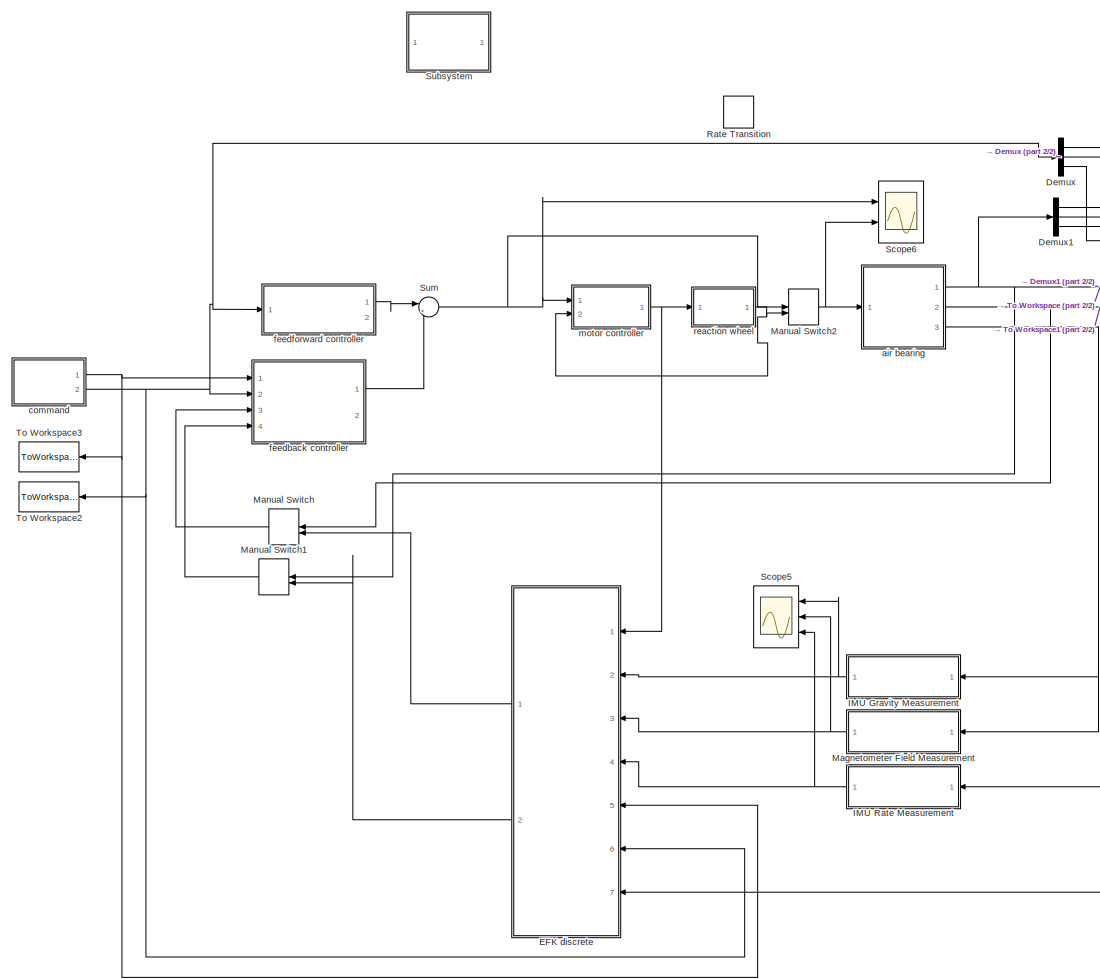
[diagram: root canvas - part 1/2, center side, full height]
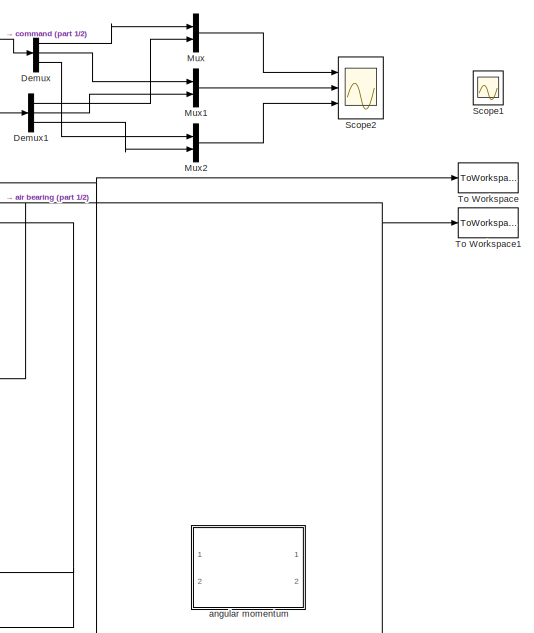
[diagram: root canvas - part 2/2, middle right region]
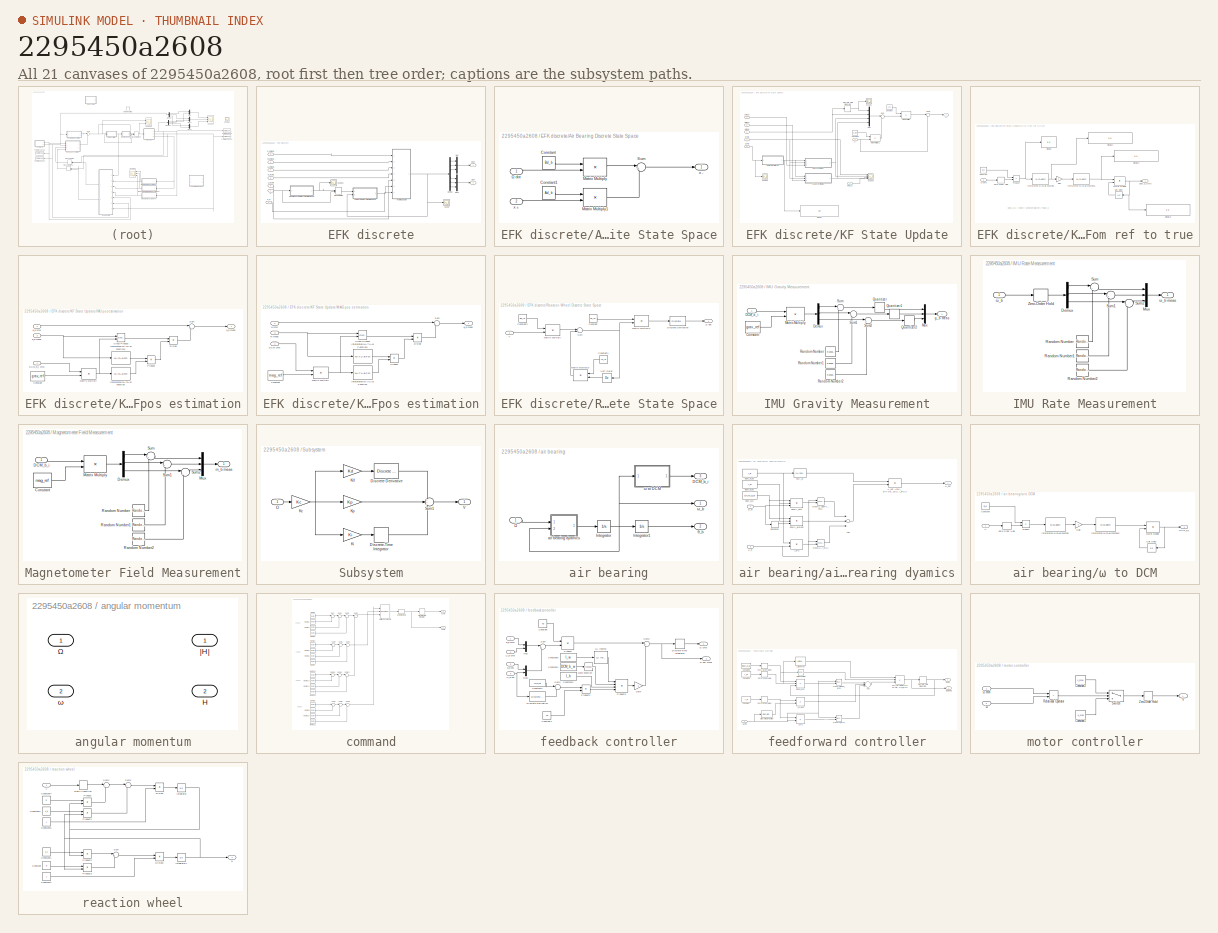
[diagram: thumbnail index - all 21 canvases of the model, root first then tree order]
MODEL slx_2295450a2608
KIND model
CONFIG AbsTol = auto
CONFIG EnableMultiTasking = off
CONFIG FixedStep = dt
CONFIG MaxStep = auto
CONFIG MinStep = auto
CONFIG RelTol = 1e-3
CONFIG SampleTimeConstraint = Unconstrained
CONFIG Solver = FixedStepAuto
CONFIG SolverName = FixedStepAuto
CONFIG StartTime = 0.0
CONFIG StopTime = 10.0
BLOCK [Demux] Demux
  DisplayOption = bar
  Outputs = 3
  Ports = [1, 3]
BLOCK [Demux] Demux1
  DisplayOption = bar
  Outputs = 3
  Ports = [1, 3]
BLOCK [SubSystem] EFK discrete
  Ports = [7, 2]
  RequestExecContextInheritance = off
  Variant = off
BLOCK [SubSystem] EFK discrete/Air Bearing Discrete State Space
  Ports = [2, 1]
  RequestExecContextInheritance = off
  Variant = off
BLOCK [Constant] EFK discrete/Air Bearing Discrete State Space/Constant
  SampleTime = dt_c
  Value = Bd_b
  VectorParams1D = off
BLOCK [Constant] EFK discrete/Air Bearing Discrete State Space/Constant1
  SampleTime = dt_c
  Value = Ad_b
  VectorParams1D = off
BLOCK [Product] EFK discrete/Air Bearing Discrete State Space/Matrix Multiply
  InputSameDT = off
  Multiplication = Matrix(*)
  OutDataTypeStr = Inherit: Inherit via internal rule
  Ports = [2, 1]
  RndMeth = Floor
  SaturateOnIntegerOverflow = off
BLOCK [Product] EFK discrete/Air Bearing Discrete State Space/Matrix Multiply1
  InputSameDT = off
  Multiplication = Matrix(*)
  OutDataTypeStr = Inherit: Inherit via internal rule
  Ports = [2, 1]
  RndMeth = Floor
  SaturateOnIntegerOverflow = off
BLOCK [Sum] EFK discrete/Air Bearing Discrete State Space/Sum
  IconShape = round
  InputSameDT = off
  Inputs = |++
  OutDataTypeStr = Inherit: Inherit via internal rule
  Ports = [2, 1]
  SaturateOnIntegerOverflow = off
BLOCK [Inport] EFK discrete/Air Bearing Discrete State Space/x +
  IconDisplay = Port number
  Port = 2
BLOCK [Outport] EFK discrete/Air Bearing Discrete State Space/x -
  IconDisplay = Port number
BLOCK [Inport] EFK discrete/Air Bearing Discrete State Space/Ω dot
  IconDisplay = Port number
BLOCK [Demux] EFK discrete/Demux
  DisplayOption = bar
  Outputs = 6
  Ports = [1, 6]
BLOCK [SubSystem] EFK discrete/KF State Update
  Ports = [7, 1]
  RequestExecContextInheritance = off
  Variant = off
BLOCK [Constant] EFK discrete/KF State Update/Constant
  SampleTime = dt_c
  Value = Lss
  VectorParams1D = off
BLOCK [Constant] EFK discrete/KF State Update/Constant1
  SampleTime = dt_c
  Value = C_lqe
  VectorParams1D = off
BLOCK [SubSystem] EFK discrete/KF State Update/DCM from ref to true
  Ports = [1, 1]
  RequestExecContextInheritance = off
  Variant = off
BLOCK [Constant] EFK discrete/KF State Update/DCM from ref to true/Constant
  Value = dt_c
BLOCK [Outport] EFK discrete/KF State Update/DCM from ref to true/DCM_b_i cmd
  IconDisplay = Port number
BLOCK [Display] EFK discrete/KF State Update/DCM from ref to true/Display
  Decimation = 1
  Ports = [1]
BLOCK [Display] EFK discrete/KF State Update/DCM from ref to true/Display1
  Decimation = 1
  Ports = [1]
BLOCK [Display] EFK discrete/KF State Update/DCM from ref to true/Display2
  Decimation = 1
  Ports = [1]
BLOCK [Display] EFK discrete/KF State Update/DCM from ref to true/Display3
  Decimation = 1
  Ports = [1]
BLOCK [Gain] EFK discrete/KF State Update/DCM from ref to true/Gain
  Gain = -1
  OutDataTypeStr = Inherit: Inherit via internal rule
  ParamDataTypeStr = Inherit: Inherit via internal rule
  SaturateOnIntegerOverflow = off
BLOCK [MATLABFcn] EFK discrete/KF State Update/DCM from ref to true/Interpreted MATLAB Function
  MATLABFcn = Smtrx
  Output1D = off
  OutputDimensions = [3,3]
  Ports = [1, 1]
BLOCK [MATLABFcn] EFK discrete/KF State Update/DCM from ref to true/Interpreted MATLAB Function1
  MATLABFcn = expm
  Output1D = off
  OutputDimensions = [3,3]
  Ports = [1, 1]
BLOCK [Product] EFK discrete/KF State Update/DCM from ref to true/Matrix Multiply
  InputSameDT = off
  Multiplication = Matrix(*)
  OutDataTypeStr = Inherit: Inherit via internal rule
  Ports = [2, 1]
  RndMeth = Floor
  SaturateOnIntegerOverflow = off
BLOCK [Product] EFK discrete/KF State Update/DCM from ref to true/Product
  InputSameDT = off
  OutDataTypeStr = Inherit: Inherit via internal rule
  Ports = [2, 1]
  RndMeth = Floor
  SaturateOnIntegerOverflow = off
BLOCK [UnitDelay] EFK discrete/KF State Update/DCM from ref to true/Unit Delay
  InitialCondition = DCM_b_i_0
  InputProcessing = Elements as channels (sample based)
  SampleTime = dt_c
BLOCK [ZeroOrderHold] EFK discrete/KF State Update/DCM from ref to true/Zero-Order Hold
  SampleTime = dt_c
BLOCK [Inport] EFK discrete/KF State Update/DCM from ref to true/ω cmd
  IconDisplay = Port number
BLOCK [DiscreteIntegrator] EFK discrete/KF State Update/Discrete-Time Integrator
  ICPrevOutput = DiscIntNeverNeededParam
  ICPrevScaledInput = DiscIntNeverNeededParam
  InitialConditionSetting = State (most efficient)
  Ports = [1, 1]
  SampleTime = dt_c
BLOCK [Display] EFK discrete/KF State Update/Display
  Decimation = 1
  Ports = [1]
BLOCK [SubSystem] EFK discrete/KF State Update/IMU pos estimation
  Ports = [3, 1]
  RequestExecContextInheritance = off
  Variant = off
BLOCK [Constant] EFK discrete/KF State Update/IMU pos estimation/Constant
  SampleTime = dt_c
  Value = grav_ref
  VectorParams1D = off
BLOCK [Reference] EFK discrete/KF State Update/IMU pos estimation/Cross Product  REF=vrlib/Utilities/Cross Product
  Ports = [2, 1]
  SourceBlock = vrlib/Utilities/Cross Product
  SourceProductBaseCode = VR
  SourceProductName = Simulink 3D Animation
  SourceType = Cross Product
BLOCK [Inport] EFK discrete/KF State Update/IMU pos estimation/DCM_b_i cmd
  IconDisplay = Port number
BLOCK [Product] EFK discrete/KF State Update/IMU pos estimation/Divide
  InputSameDT = off
  Inputs = */
  OutDataTypeStr = Inherit: Inherit via internal rule
  Ports = [2, 1]
  RndMeth = Floor
  SaturateOnIntegerOverflow = off
BLOCK [MATLABFcn] EFK discrete/KF State Update/IMU pos estimation/Interpreted MATLAB Function
  MATLABFcn = norm
  Ports = [1, 1]
BLOCK [MATLABFcn] EFK discrete/KF State Update/IMU pos estimation/Interpreted MATLAB Function1
  MATLABFcn = norm
  Ports = [1, 1]
BLOCK [Product] EFK discrete/KF State Update/IMU pos estimation/Matrix Multiply
  InputSameDT = off
  Multiplication = Matrix(*)
  OutDataTypeStr = Inherit: Inherit via internal rule
  Ports = [2, 1]
  RndMeth = Floor
  SaturateOnIntegerOverflow = off
BLOCK [Product] EFK discrete/KF State Update/IMU pos estimation/Product
  InputSameDT = off
  OutDataTypeStr = Inherit: Inherit via internal rule
  Ports = [2, 1]
  RndMeth = Floor
  SaturateOnIntegerOverflow = off
BLOCK [Sum] EFK discrete/KF State Update/IMU pos estimation/Sum
  IconShape = round
  InputSameDT = off
  Inputs = |++
  OutDataTypeStr = Inherit: Inherit via internal rule
  Ports = [2, 1]
  SaturateOnIntegerOverflow = off
BLOCK [Inport] EFK discrete/KF State Update/IMU pos estimation/g_b meas
  IconDisplay = Port number
  Port = 3
BLOCK [Inport] EFK discrete/KF State Update/IMU pos estimation/θ_b cmd
  IconDisplay = Port number
  Port = 2
BLOCK [Outport] EFK discrete/KF State Update/IMU pos estimation/θ_b meas
  IconDisplay = Port number
BLOCK [SubSystem] EFK discrete/KF State Update/MAG pos estimation
  Ports = [3, 1]
  RequestExecContextInheritance = off
  Variant = off
BLOCK [Constant] EFK discrete/KF State Update/MAG pos estimation/Constant
  SampleTime = dt_c
  Value = mag_ref
  VectorParams1D = off
BLOCK [Reference] EFK discrete/KF State Update/MAG pos estimation/Cross Product  REF=vrlib/Utilities/Cross Product
  Ports = [2, 1]
  SourceBlock = vrlib/Utilities/Cross Product
  SourceProductBaseCode = VR
  SourceProductName = Simulink 3D Animation
  SourceType = Cross Product
BLOCK [Inport] EFK discrete/KF State Update/MAG pos estimation/DCM cmd
  IconDisplay = Port number
BLOCK [Product] EFK discrete/KF State Update/MAG pos estimation/Divide
  InputSameDT = off
  Inputs = */
  OutDataTypeStr = Inherit: Inherit via internal rule
  Ports = [2, 1]
  RndMeth = Floor
  SaturateOnIntegerOverflow = off
BLOCK [MATLABFcn] EFK discrete/KF State Update/MAG pos estimation/Interpreted MATLAB Function
  MATLABFcn = norm
  Output1D = off
  Ports = [1, 1]
BLOCK [MATLABFcn] EFK discrete/KF State Update/MAG pos estimation/Interpreted MATLAB Function1
  MATLABFcn = norm
  Output1D = off
  Ports = [1, 1]
BLOCK [Product] EFK discrete/KF State Update/MAG pos estimation/Matrix Multiply
  InputSameDT = off
  Multiplication = Matrix(*)
  OutDataTypeStr = Inherit: Inherit via internal rule
  Ports = [2, 1]
  RndMeth = Floor
  SaturateOnIntegerOverflow = off
BLOCK [Product] EFK discrete/KF State Update/MAG pos estimation/Product
  InputSameDT = off
  OutDataTypeStr = Inherit: Inherit via internal rule
  Ports = [2, 1]
  RndMeth = Floor
  SaturateOnIntegerOverflow = off
BLOCK [Sum] EFK discrete/KF State Update/MAG pos estimation/Sum
  IconShape = round
  InputSameDT = off
  Inputs = |++
  OutDataTypeStr = Inherit: Inherit via internal rule
  Ports = [2, 1]
  SaturateOnIntegerOverflow = off
BLOCK [Inport] EFK discrete/KF State Update/MAG pos estimation/m meas
  IconDisplay = Port number
  Port = 3
BLOCK [Inport] EFK discrete/KF State Update/MAG pos estimation/θ cmd
  IconDisplay = Port number
  Port = 2
BLOCK [Outport] EFK discrete/KF State Update/MAG pos estimation/θ_b meas
  IconDisplay = Port number
BLOCK [Product] EFK discrete/KF State Update/Matrix Multiply
  InputSameDT = off
  Multiplication = Matrix(*)
  OutDataTypeStr = Inherit: Inherit via internal rule
  Ports = [2, 1]
  RndMeth = Floor
  SaturateOnIntegerOverflow = off
BLOCK [Product] EFK discrete/KF State Update/Matrix Multiply1
  InputSameDT = off
  Multiplication = Matrix(*)
  OutDataTypeStr = Inherit: Inherit via internal rule
  Ports = [2, 1]
  RndMeth = Floor
  SaturateOnIntegerOverflow = off
BLOCK [Mux] EFK discrete/KF State Update/Mux
  DisplayOption = bar
  Ports = [4, 1]
BLOCK [Scope] EFK discrete/KF State Update/Scope1
  NumInputPorts = 1
  Ports = [1]
  ScopeSpecificationString = Simulink.scopes.TimeScopeBlockCfg('CurrentConfiguration', extmgr.ConfigurationSet(extmgr.Configuration('Core','General UI',true),extmgr.Configuration('Core','Source UI',true),extmgr.Configuration('Sources','WiredSimulink',true,'DataLoggingVariableName','ScopeData7'),extmgr.Configuration('Visuals','Time Domain',true,'SerializedDisplays',{struct('MinYLimReal','-404518.97909','MaxYLimReal','173117.20...<+1535ch>
BLOCK [Scope] EFK discrete/KF State Update/Scope2
  NumInputPorts = 1
  Ports = [1]
  ScopeSpecificationString = Simulink.scopes.TimeScopeBlockCfg('CurrentConfiguration', extmgr.ConfigurationSet(extmgr.Configuration('Core','General UI',true),extmgr.Configuration('Core','Source UI',true),extmgr.Configuration('Sources','WiredSimulink',true,'DataLoggingVariableName','ScopeData7'),extmgr.Configuration('Visuals','Time Domain',true,'SerializedDisplays',{struct('MinYLimReal','-0.002','MaxYLimReal','0.018','YLabelRe...<+1428ch>
BLOCK [Scope] EFK discrete/KF State Update/Scope3
  NumInputPorts = 4
  Ports = [4]
  ScopeSpecificationString = Simulink.scopes.TimeScopeBlockCfg('CurrentConfiguration', extmgr.ConfigurationSet(extmgr.Configuration('Core','General UI',true),extmgr.Configuration('Core','Source UI',true),extmgr.Configuration('Sources','WiredSimulink',true,'DataLoggingVariableName','ScopeData8'),extmgr.Configuration('Visuals','Time Domain',true,'SerializedDisplays',{struct('MinYLimReal','-0.25','MaxYLimReal','2.25','YLabelReal...<+3631ch>
BLOCK [Sum] EFK discrete/KF State Update/Sum
  IconShape = round
  InputSameDT = off
  Inputs = |+-
  OutDataTypeStr = Inherit: Inherit via internal rule
  Ports = [2, 1]
  SaturateOnIntegerOverflow = off
BLOCK [Sum] EFK discrete/KF State Update/Sum1
  IconShape = round
  InputSameDT = off
  Inputs = |++
  OutDataTypeStr = Inherit: Inherit via internal rule
  Ports = [2, 1]
  SaturateOnIntegerOverflow = off
BLOCK [Inport] EFK discrete/KF State Update/g meas
  IconDisplay = Port number
BLOCK [Inport] EFK discrete/KF State Update/m meas
  IconDisplay = Port number
  Port = 2
BLOCK [Inport] EFK discrete/KF State Update/theta_b
  IconDisplay = Port number
  Port = 7
BLOCK [Outport] EFK discrete/KF State Update/x +
  IconDisplay = Port number
BLOCK [Inport] EFK discrete/KF State Update/x -
  IconDisplay = Port number
  Port = 6
BLOCK [Inport] EFK discrete/KF State Update/θ cmd
  IconDisplay = Port number
  Port = 4
BLOCK [Inport] EFK discrete/KF State Update/ω cmd
  IconDisplay = Port number
  Port = 5
BLOCK [Inport] EFK discrete/KF State Update/ω meas
  IconDisplay = Port number
  Port = 3
BLOCK [ManualSwitch] EFK discrete/Manual Switch
BLOCK [Mux] EFK discrete/Mux
  DisplayOption = bar
  Inputs = 3
  Ports = [3, 1]
BLOCK [Mux] EFK discrete/Mux1
  DisplayOption = bar
  Inputs = 3
  Ports = [3, 1]
BLOCK [SubSystem] EFK discrete/Reaction Wheel Discrete State Space
  Ports = [1, 1]
  RequestExecContextInheritance = off
  Variant = off
BLOCK [Constant] EFK discrete/Reaction Wheel Discrete State Space/Constant
  Value = Cd_rw
  VectorParams1D = off
BLOCK [Constant] EFK discrete/Reaction Wheel Discrete State Space/Constant1
  Value = Ad_rw
  VectorParams1D = off
BLOCK [Constant] EFK discrete/Reaction Wheel Discrete State Space/Constant2
  Value = Bd_rw
  VectorParams1D = off
BLOCK [Reference] EFK discrete/Reaction Wheel Discrete State Space/Discrete Derivative  REF=simulink/Discrete/Discrete Derivative
  Ports = [1, 1]
  SourceBlock = simulink/Discrete/Discrete Derivative
  SourceProductBaseCode = SL
  SourceProductName = Simulink
  SourceType = Discrete Derivative
BLOCK [Product] EFK discrete/Reaction Wheel Discrete State Space/Matrix Multiply
  InputSameDT = off
  Multiplication = Matrix(*)
  OutDataTypeStr = Inherit: Inherit via internal rule
  Ports = [2, 1]
  RndMeth = Floor
  SaturateOnIntegerOverflow = off
BLOCK [Product] EFK discrete/Reaction Wheel Discrete State Space/Matrix Multiply1
  InputSameDT = off
  Multiplication = Matrix(*)
  OutDataTypeStr = Inherit: Inherit via internal rule
  Ports = [2, 1]
  RndMeth = Floor
  SaturateOnIntegerOverflow = off
BLOCK [Product] EFK discrete/Reaction Wheel Discrete State Space/Matrix Multiply2
  InputSameDT = off
  Multiplication = Matrix(*)
  OutDataTypeStr = Inherit: Inherit via internal rule
  Ports = [2, 1]
  RndMeth = Floor
  SaturateOnIntegerOverflow = off
BLOCK [Sum] EFK discrete/Reaction Wheel Discrete State Space/Sum
  IconShape = round
  InputSameDT = off
  Inputs = |++
  OutDataTypeStr = Inherit: Inherit via internal rule
  Ports = [2, 1]
  SaturateOnIntegerOverflow = off
BLOCK [UnitDelay] EFK discrete/Reaction Wheel Discrete State Space/Unit Delay
  InputProcessing = Elements as channels (sample based)
  SampleTime = dt_c
BLOCK [Inport] EFK discrete/Reaction Wheel Discrete State Space/V
  IconDisplay = Port number
BLOCK [Outport] EFK discrete/Reaction Wheel Discrete State Space/Ω dot
  IconDisplay = Port number
BLOCK [Scope] EFK discrete/Scope
  NumInputPorts = 1
  Ports = [1]
  ScopeSpecificationString = Simulink.scopes.TimeScopeBlockCfg('CurrentConfiguration', extmgr.ConfigurationSet(extmgr.Configuration('Core','General UI',true),extmgr.Configuration('Core','Source UI',true),extmgr.Configuration('Sources','WiredSimulink',true,'DataLoggingVariableName','ScopeData4'),extmgr.Configuration('Visuals','Time Domain',true,'SerializedDisplays',{struct('MinYLimReal','-10.00000','MaxYLimReal','10.00000','YL...<+1607ch>
BLOCK [Scope] EFK discrete/Scope1
  NumInputPorts = 1
  Ports = [1]
  ScopeSpecificationString = Simulink.scopes.TimeScopeBlockCfg('CurrentConfiguration', extmgr.ConfigurationSet(extmgr.Configuration('Core','General UI',true),extmgr.Configuration('Core','Source UI',true),extmgr.Configuration('Sources','WiredSimulink',true,'DataLoggingVariableName','ScopeData1'),extmgr.Configuration('Visuals','Time Domain',true,'SerializedDisplays',{struct('MinYLimReal','-71.24426','MaxYLimReal','76.95567','YL...<+1594ch>
BLOCK [Inport] EFK discrete/V
  IconDisplay = Port number
BLOCK [Inport] EFK discrete/g_b meas
  IconDisplay = Port number
  Port = 2
BLOCK [Inport] EFK discrete/m_b meas
  IconDisplay = Port number
  Port = 3
BLOCK [Outport] EFK discrete/θ est
  IconDisplay = Port number
BLOCK [Inport] EFK discrete/θ_b 
  IconDisplay = Port number
  Port = 7
BLOCK [Inport] EFK discrete/θ_b cmd
  IconDisplay = Port number
  Port = 5
BLOCK [Outport] EFK discrete/ω est
  IconDisplay = Port number
  Port = 2
BLOCK [Inport] EFK discrete/ω_b cmd
  IconDisplay = Port number
  Port = 6
BLOCK [Inport] EFK discrete/ω_b meas
  IconDisplay = Port number
  Port = 4
BLOCK [SubSystem] IMU Gravity Measurement
  Ports = [1, 1]
  RequestExecContextInheritance = off
  Variant = off
BLOCK [Constant] IMU Gravity Measurement/Constant
  Value = grav_ref
  VectorParams1D = off
BLOCK [Inport] IMU Gravity Measurement/DCM_b_i
  IconDisplay = Port number
BLOCK [Demux] IMU Gravity Measurement/Demux
  DisplayOption = bar
  Outputs = 3
  Ports = [1, 3]
BLOCK [Product] IMU Gravity Measurement/Matrix Multiply
  InputSameDT = off
  Multiplication = Matrix(*)
  OutDataTypeStr = Inherit: Inherit via internal rule
  Ports = [2, 1]
  RndMeth = Floor
  SaturateOnIntegerOverflow = off
BLOCK [Mux] IMU Gravity Measurement/Mux
  DisplayOption = bar
  Inputs = 3
  Ports = [3, 1]
BLOCK [Quantizer] IMU Gravity Measurement/Quantizer
  QuantizationInterval = 0.01
BLOCK [Quantizer] IMU Gravity Measurement/Quantizer1
  QuantizationInterval = 0.01
BLOCK [Quantizer] IMU Gravity Measurement/Quantizer2
  QuantizationInterval = 0.01
BLOCK [RandomNumber] IMU Gravity Measurement/Random Number
  SampleTime = dt_c
  Variance = grav_variance
BLOCK [RandomNumber] IMU Gravity Measurement/Random Number1
  SampleTime = dt_c
  Variance = grav_variance
BLOCK [RandomNumber] IMU Gravity Measurement/Random Number2
  SampleTime = dt_c
  Variance = grav_variance
BLOCK [Sum] IMU Gravity Measurement/Sum
  IconShape = round
  InputSameDT = off
  Inputs = |++
  OutDataTypeStr = Inherit: Inherit via internal rule
  Ports = [2, 1]
  SaturateOnIntegerOverflow = off
BLOCK [Sum] IMU Gravity Measurement/Sum1
  IconShape = round
  InputSameDT = off
  Inputs = |++
  OutDataTypeStr = Inherit: Inherit via internal rule
  Ports = [2, 1]
  SaturateOnIntegerOverflow = off
BLOCK [Sum] IMU Gravity Measurement/Sum2
  IconShape = round
  InputSameDT = off
  Inputs = |++
  OutDataTypeStr = Inherit: Inherit via internal rule
  Ports = [2, 1]
  SaturateOnIntegerOverflow = off
BLOCK [Outport] IMU Gravity Measurement/g_b meas
  IconDisplay = Port number
BLOCK [SubSystem] IMU Rate Measurement
  Ports = [1, 1]
  RequestExecContextInheritance = off
  Variant = off
BLOCK [Demux] IMU Rate Measurement/Demux
  DisplayOption = bar
  Outputs = 3
  Ports = [1, 3]
BLOCK [Mux] IMU Rate Measurement/Mux
  DisplayOption = bar
  Inputs = 3
  Ports = [3, 1]
BLOCK [RandomNumber] IMU Rate Measurement/Random Number
  SampleTime = dt_c
  Variance = omega_variance(1)
BLOCK [RandomNumber] IMU Rate Measurement/Random Number1
  SampleTime = dt_c
  Variance = omega_variance(2)
BLOCK [RandomNumber] IMU Rate Measurement/Random Number2
  SampleTime = dt_c
  Variance = omega_variance(3)
BLOCK [Sum] IMU Rate Measurement/Sum
  IconShape = round
  InputSameDT = off
  Inputs = |++
  OutDataTypeStr = Inherit: Inherit via internal rule
  Ports = [2, 1]
  SaturateOnIntegerOverflow = off
BLOCK [Sum] IMU Rate Measurement/Sum1
  IconShape = round
  InputSameDT = off
  Inputs = |++
  OutDataTypeStr = Inherit: Inherit via internal rule
  Ports = [2, 1]
  SaturateOnIntegerOverflow = off
BLOCK [Sum] IMU Rate Measurement/Sum2
  IconShape = round
  InputSameDT = off
  Inputs = |++
  OutDataTypeStr = Inherit: Inherit via internal rule
  Ports = [2, 1]
  SaturateOnIntegerOverflow = off
BLOCK [ZeroOrderHold] IMU Rate Measurement/Zero-Order Hold
  SampleTime = dt_c
BLOCK [Inport] IMU Rate Measurement/ω_b
  IconDisplay = Port number
BLOCK [Outport] IMU Rate Measurement/ω_b meas
  IconDisplay = Port number
BLOCK [SubSystem] Magnetometer Field Measurement
  Ports = [1, 1]
  RequestExecContextInheritance = off
  Variant = off
BLOCK [Constant] Magnetometer Field Measurement/Constant
  Value = mag_ref
  VectorParams1D = off
BLOCK [Inport] Magnetometer Field Measurement/DCM_b_i
  IconDisplay = Port number
BLOCK [Demux] Magnetometer Field Measurement/Demux
  DisplayOption = bar
  Outputs = 3
  Ports = [1, 3]
BLOCK [Product] Magnetometer Field Measurement/Matrix Multiply
  InputSameDT = off
  Multiplication = Matrix(*)
  OutDataTypeStr = Inherit: Inherit via internal rule
  Ports = [2, 1]
  RndMeth = Floor
  SaturateOnIntegerOverflow = off
BLOCK [Mux] Magnetometer Field Measurement/Mux
  DisplayOption = bar
  Inputs = 3
  Ports = [3, 1]
BLOCK [RandomNumber] Magnetometer Field Measurement/Random Number
  SampleTime = dt_c
  Variance = mag_variance(1)
BLOCK [RandomNumber] Magnetometer Field Measurement/Random Number1
  SampleTime = dt_c
  Variance = mag_variance(2)
BLOCK [RandomNumber] Magnetometer Field Measurement/Random Number2
  SampleTime = dt_c
  Variance = mag_variance(3)
BLOCK [Sum] Magnetometer Field Measurement/Sum
  IconShape = round
  InputSameDT = off
  Inputs = |++
  OutDataTypeStr = Inherit: Inherit via internal rule
  Ports = [2, 1]
  SaturateOnIntegerOverflow = off
BLOCK [Sum] Magnetometer Field Measurement/Sum1
  IconShape = round
  InputSameDT = off
  Inputs = |++
  OutDataTypeStr = Inherit: Inherit via internal rule
  Ports = [2, 1]
  SaturateOnIntegerOverflow = off
BLOCK [Sum] Magnetometer Field Measurement/Sum2
  IconShape = round
  InputSameDT = off
  Inputs = |++
  OutDataTypeStr = Inherit: Inherit via internal rule
  Ports = [2, 1]
  SaturateOnIntegerOverflow = off
BLOCK [Outport] Magnetometer Field Measurement/m_b meas
  IconDisplay = Port number
BLOCK [ManualSwitch] Manual Switch
  CurrentSetting = 0
BLOCK [ManualSwitch] Manual Switch1
  CurrentSetting = 0
BLOCK [ManualSwitch] Manual Switch2
  CurrentSetting = 0
BLOCK [Mux] Mux
  DisplayOption = bar
  Inputs = 2
  Ports = [2, 1]
BLOCK [Mux] Mux1
  DisplayOption = bar
  Inputs = 2
  Ports = [2, 1]
BLOCK [Mux] Mux2
  DisplayOption = bar
  Inputs = 2
  Ports = [2, 1]
BLOCK [RateTransition] Rate Transition
BLOCK [Scope] Scope1
  NumInputPorts = 3
  Ports = [3]
  ScopeSpecificationString = Simulink.scopes.TimeScopeBlockCfg('CurrentConfiguration', extmgr.ConfigurationSet(extmgr.Configuration('Core','General UI',true),extmgr.Configuration('Core','Source UI',true),extmgr.Configuration('Sources','WiredSimulink',true,'DataLoggingVariableName','ScopeData2'),extmgr.Configuration('Visuals','Time Domain',true,'SerializedDisplays',{struct('MinYLimReal','-147.65445','MaxYLimReal','193.00357','...<+3023ch>
BLOCK [Scope] Scope2
  NumInputPorts = 3
  Ports = [3]
  ScopeSpecificationString = Simulink.scopes.TimeScopeBlockCfg('CurrentConfiguration', extmgr.ConfigurationSet(extmgr.Configuration('Core','General UI',true),extmgr.Configuration('Core','Source UI',true),extmgr.Configuration('Sources','WiredSimulink',true),extmgr.Configuration('Visuals','Time Domain',true,'SerializedDisplays',{struct('MinYLimReal','-15540843.73821','MaxYLimReal','16975015.15767','YLabelReal','','MinYLimMag','...<+2817ch>
BLOCK [Scope] Scope5
  NumInputPorts = 3
  Ports = [3]
  ScopeSpecificationString = Simulink.scopes.TimeScopeBlockCfg('CurrentConfiguration', extmgr.ConfigurationSet(extmgr.Configuration('Core','General UI',true),extmgr.Configuration('Core','Source UI',true),extmgr.Configuration('Sources','WiredSimulink',true,'DataLoggingVariableName','ScopeData3'),extmgr.Configuration('Visuals','Time Domain',true,'SerializedDisplays',{struct('MinYLimReal','-1.235','MaxYLimReal','1.115','YLabelRe...<+3020ch>
BLOCK [Scope] Scope6
  NumInputPorts = 2
  Ports = [2]
  ScopeSpecificationString = Simulink.scopes.TimeScopeBlockCfg('CurrentConfiguration', extmgr.ConfigurationSet(extmgr.Configuration('Core','General UI',true),extmgr.Configuration('Core','Source UI',true),extmgr.Configuration('Sources','WiredSimulink',true,'DataLoggingVariableName','ScopeData2'),extmgr.Configuration('Visuals','Time Domain',true,'SerializedDisplays',{struct('MinYLimReal','-254087465.34493','MaxYLimReal','306937...<+1661ch>
BLOCK [SubSystem] Subsystem
  Ports = [1, 1]
  RequestExecContextInheritance = off
  Variant = off
BLOCK [Reference] Subsystem/Discrete Derivative  REF=simulink/Discrete/Discrete Derivative
  Ports = [1, 1]
  SourceBlock = simulink/Discrete/Discrete Derivative
  SourceProductBaseCode = SL
  SourceProductName = Simulink
  SourceType = Discrete Derivative
BLOCK [DiscreteIntegrator] Subsystem/Discrete-Time Integrator
  ICPrevOutput = DiscIntNeverNeededParam
  ICPrevScaledInput = DiscIntNeverNeededParam
  InitialConditionSetting = State (most efficient)
  Ports = [1, 1]
  SampleTime = -1
BLOCK [Gain] Subsystem/Kc
  Gain = Kc
BLOCK [Gain] Subsystem/Kd
  Gain = Kd
BLOCK [Gain] Subsystem/Ki
  Gain = Ki
BLOCK [Gain] Subsystem/Kp
  Gain = Kp
BLOCK [Sum] Subsystem/Sum1
  IconShape = round
  InputSameDT = off
  Inputs = +++
  OutDataTypeStr = Inherit: Inherit via internal rule
  Ports = [3, 1]
  SaturateOnIntegerOverflow = off
BLOCK [Outport] Subsystem/V
  IconDisplay = Port number
BLOCK [Inport] Subsystem/Ω
  IconDisplay = Port number
BLOCK [Sum] Sum
  IconShape = round
  InputSameDT = off
  Inputs = |++
  OutDataTypeStr = Inherit: Inherit via internal rule
  Ports = [2, 1]
  SaturateOnIntegerOverflow = off
BLOCK [ToWorkspace] To Workspace
  FixptAsFi = on
  MaxDataPoints = inf
  Ports = [1]
  SampleTime = -1
  Save2DSignal = 3-D array (concatenate along third dimension)
  VariableName = omega
BLOCK [ToWorkspace] To Workspace1
  FixptAsFi = on
  MaxDataPoints = inf
  Ports = [1]
  SampleTime = -1
  Save2DSignal = 3-D array (concatenate along third dimension)
  VariableName = theta
BLOCK [ToWorkspace] To Workspace2
  FixptAsFi = on
  MaxDataPoints = inf
  Ports = [1]
  SampleTime = -1
  Save2DSignal = 3-D array (concatenate along third dimension)
  SaveFormat = Timeseries
  VariableName = omega_cmd
BLOCK [ToWorkspace] To Workspace3
  FixptAsFi = on
  MaxDataPoints = inf
  Ports = [1]
  SampleTime = -1
  Save2DSignal = 3-D array (concatenate along third dimension)
  SaveFormat = Timeseries
  VariableName = theta_cmd
BLOCK [SubSystem] air bearing
  Ports = [1, 3]
  RequestExecContextInheritance = off
  Variant = off
BLOCK [Outport] air bearing/DCM_b_i
  IconDisplay = Port number
  Port = 3
BLOCK [Integrator] air bearing/Integrator
  InitialCondition = omega_0
  Ports = [1, 1]
BLOCK [Integrator] air bearing/Integrator1
  InitialCondition = theta_0
  Ports = [1, 1]
BLOCK [SubSystem] air bearing/air bearing dyamics
  Ports = [2, 1]
  RequestExecContextInheritance = off
  Variant = off
BLOCK [Sum] air bearing/air bearing dyamics/Add
  InputSameDT = off
  Inputs = ---
  OutDataTypeStr = Inherit: Inherit via internal rule
  Ports = [3, 1]
  SaturateOnIntegerOverflow = off
BLOCK [Product] air bearing/air bearing dyamics/DCM*I_w*Ω
  InputSameDT = off
  Inputs = 3
  Multiplication = Matrix(*)
  OutDataTypeStr = Inherit: Inherit via internal rule
  Ports = [3, 1]
  RndMeth = Floor
  SaturateOnIntegerOverflow = off
BLOCK [Product] air bearing/air bearing dyamics/DCM*I_w*Ωdot
  InputSameDT = off
  Inputs = 3
  Multiplication = Matrix(*)
  OutDataTypeStr = Inherit: Inherit via internal rule
  Ports = [3, 1]
  RndMeth = Floor
  SaturateOnIntegerOverflow = off
BLOCK [Constant] air bearing/air bearing dyamics/DCM_w_b
  Value = DCM_b_w
  VectorParams1D = off
BLOCK [Constant] air bearing/air bearing dyamics/DCM_w_b1
  Value = I_w
  VectorParams1D = off
BLOCK [Constant] air bearing/air bearing dyamics/DCM_w_b2
  Value = I_b
  VectorParams1D = off
BLOCK [Derivative] air bearing/air bearing dyamics/Derivative
BLOCK [Product] air bearing/air bearing dyamics/I_b*ω
  InputSameDT = off
  Multiplication = Matrix(*)
  OutDataTypeStr = Inherit: Inherit via internal rule
  Ports = [2, 1]
  RndMeth = Floor
  SaturateOnIntegerOverflow = off
BLOCK [Reference] air bearing/air bearing dyamics/cross(ω,DCM*I_w*Ω)  REF=vrlib/Utilities/Cross Product
  Ports = [2, 1]
  SourceBlock = vrlib/Utilities/Cross Product
  SourceProductBaseCode = VR
  SourceProductName = Simulink 3D Animation
  SourceType = Cross Product
BLOCK [Reference] air bearing/air bearing dyamics/cross(ω,I_b*ω)  REF=vrlib/Utilities/Cross Product
  Ports = [2, 1]
  SourceBlock = vrlib/Utilities/Cross Product
  SourceProductBaseCode = VR
  SourceProductName = Simulink 3D Animation
  SourceType = Cross Product
BLOCK [Reference] air bearing/air bearing dyamics/inv(I_b)  REF=dspinverses/ LU Inverse
  Ports = [1, 1]
  SourceBlock = dspinverses/ LU Inverse
  SourceProductBaseCode = DS
  SourceProductName = DSP System Toolbox
  SourceType = LU Inverse
BLOCK [Inport] air bearing/air bearing dyamics/Ω_w
  IconDisplay = Port number
BLOCK [Inport] air bearing/air bearing dyamics/ω_b
  IconDisplay = Port number
  Port = 2
BLOCK [Outport] air bearing/air bearing dyamics/ω_dot
  IconDisplay = Port number
BLOCK [Product] air bearing/air bearing dyamics/ω_dot = inv(I_b)*[-cross(ω,DCM*I_w*Ω)-DCM*I_w*Ωdot-cross(ω,I_b*ω)]
  InputSameDT = off
  Multiplication = Matrix(*)
  OutDataTypeStr = Inherit: Inherit via internal rule
  Ports = [2, 1]
  RndMeth = Floor
  SaturateOnIntegerOverflow = off
BLOCK [Inport] air bearing/Ω
  IconDisplay = Port number
BLOCK [Outport] air bearing/θ_b
  IconDisplay = Port number
  Port = 2
BLOCK [SubSystem] air bearing/ω to DCM
  Ports = [1, 1]
  RequestExecContextInheritance = off
  Variant = off
BLOCK [Constant] air bearing/ω to DCM/Constant
  Value = dt_w
BLOCK [Outport] air bearing/ω to DCM/DCM_b_i
  IconDisplay = Port number
BLOCK [Gain] air bearing/ω to DCM/Gain
  Gain = -1
  OutDataTypeStr = Inherit: Inherit via internal rule
  ParamDataTypeStr = Inherit: Inherit via internal rule
  SaturateOnIntegerOverflow = off
BLOCK [MATLABFcn] air bearing/ω to DCM/Interpreted MATLAB Function
  MATLABFcn = Smtrx
  Output1D = off
  OutputDimensions = [3,3]
  Ports = [1, 1]
BLOCK [MATLABFcn] air bearing/ω to DCM/Interpreted MATLAB Function1
  MATLABFcn = expm
  Output1D = off
  OutputDimensions = [3,3]
  Ports = [1, 1]
BLOCK [Product] air bearing/ω to DCM/Matrix Multiply
  InputSameDT = off
  Multiplication = Matrix(*)
  OutDataTypeStr = Inherit: Inherit via internal rule
  Ports = [2, 1]
  RndMeth = Floor
  SaturateOnIntegerOverflow = off
BLOCK [Product] air bearing/ω to DCM/Product
  InputSameDT = off
  OutDataTypeStr = Inherit: Inherit via internal rule
  Ports = [2, 1]
  RndMeth = Floor
  SaturateOnIntegerOverflow = off
BLOCK [UnitDelay] air bearing/ω to DCM/Unit Delay
  InitialCondition = DCM_b_i_0
  InputProcessing = Elements as channels (sample based)
  SampleTime = -1
BLOCK [ZeroOrderHold] air bearing/ω to DCM/Zero-Order Hold
  SampleTime = dt_w
BLOCK [Inport] air bearing/ω to DCM/ω
  IconDisplay = Port number
BLOCK [Outport] air bearing/ω_b
  IconDisplay = Port number
BLOCK [SubSystem] angular momentum
  Ports = [2, 2]
  RequestExecContextInheritance = off
  Variant = off
BLOCK [Outport] angular momentum/H
  IconDisplay = Port number
  Port = 2
BLOCK [Outport] angular momentum/|H|
  IconDisplay = Port number
BLOCK [Inport] angular momentum/Ω
  IconDisplay = Port number
BLOCK [Inport] angular momentum/ω
  IconDisplay = Port number
  Port = 2
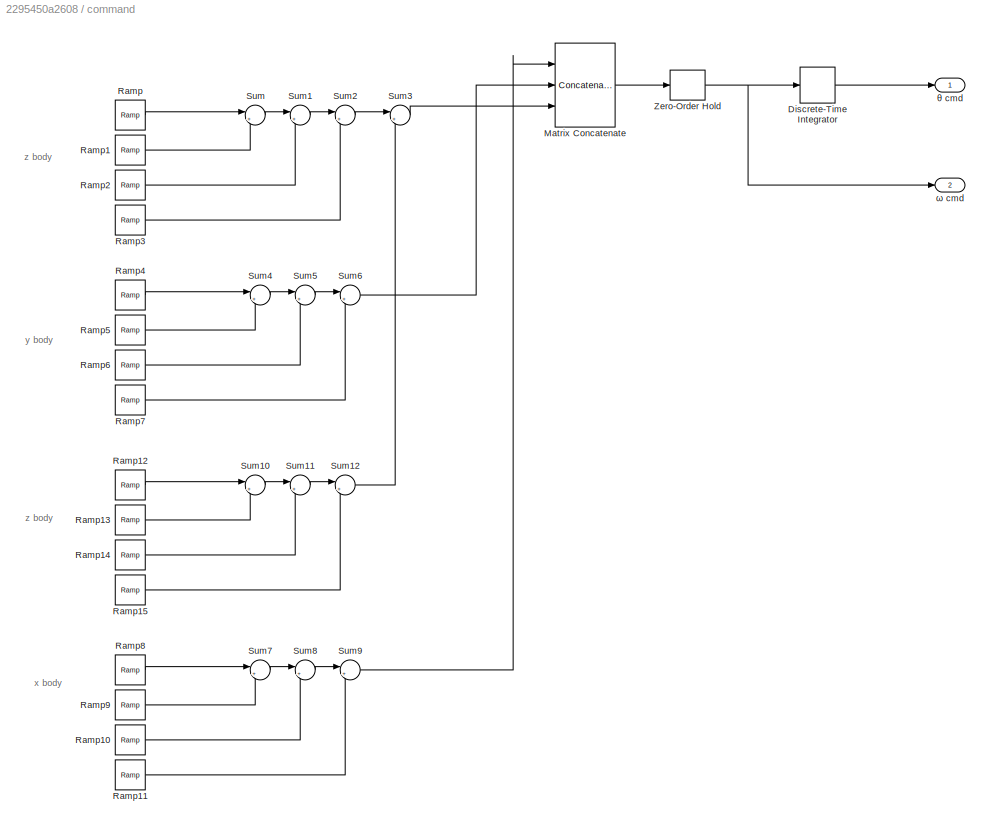
BLOCK [SubSystem] command
  Ports = [0, 2]
  RequestExecContextInheritance = off
  Variant = off
BLOCK [DiscreteIntegrator] command/Discrete-Time Integrator
  ICPrevOutput = DiscIntNeverNeededParam
  ICPrevScaledInput = DiscIntNeverNeededParam
  Ports = [1, 1]
  SampleTime = dt_c
BLOCK [Concatenate] command/Matrix Concatenate
  Mode = Multidimensional array
  NumInputs = 3
  Ports = [3, 1]
BLOCK [Reference] command/Ramp  REF=simulink/Sources/Ramp
  Ports = [0, 1]
  SourceBlock = simulink/Sources/Ramp
  SourceProductBaseCode = SL
  SourceProductName = Simulink
  SourceType = Ramp
BLOCK [Reference] command/Ramp1  REF=simulink/Sources/Ramp
  Ports = [0, 1]
  SourceBlock = simulink/Sources/Ramp
  SourceProductBaseCode = SL
  SourceProductName = Simulink
  SourceType = Ramp
BLOCK [Reference] command/Ramp10  REF=simulink/Sources/Ramp
  Ports = [0, 1]
  SourceBlock = simulink/Sources/Ramp
  SourceProductBaseCode = SL
  SourceProductName = Simulink
  SourceType = Ramp
BLOCK [Reference] command/Ramp11  REF=simulink/Sources/Ramp
  Ports = [0, 1]
  SourceBlock = simulink/Sources/Ramp
  SourceProductBaseCode = SL
  SourceProductName = Simulink
  SourceType = Ramp
BLOCK [Reference] command/Ramp12  REF=simulink/Sources/Ramp
  Ports = [0, 1]
  SourceBlock = simulink/Sources/Ramp
  SourceProductBaseCode = SL
  SourceProductName = Simulink
  SourceType = Ramp
BLOCK [Reference] command/Ramp13  REF=simulink/Sources/Ramp
  Ports = [0, 1]
  SourceBlock = simulink/Sources/Ramp
  SourceProductBaseCode = SL
  SourceProductName = Simulink
  SourceType = Ramp
BLOCK [Reference] command/Ramp14  REF=simulink/Sources/Ramp
  Ports = [0, 1]
  SourceBlock = simulink/Sources/Ramp
  SourceProductBaseCode = SL
  SourceProductName = Simulink
  SourceType = Ramp
BLOCK [Reference] command/Ramp15  REF=simulink/Sources/Ramp
  Ports = [0, 1]
  SourceBlock = simulink/Sources/Ramp
  SourceProductBaseCode = SL
  SourceProductName = Simulink
  SourceType = Ramp
BLOCK [Reference] command/Ramp2  REF=simulink/Sources/Ramp
  Ports = [0, 1]
  SourceBlock = simulink/Sources/Ramp
  SourceProductBaseCode = SL
  SourceProductName = Simulink
  SourceType = Ramp
BLOCK [Reference] command/Ramp3  REF=simulink/Sources/Ramp
  Ports = [0, 1]
  SourceBlock = simulink/Sources/Ramp
  SourceProductBaseCode = SL
  SourceProductName = Simulink
  SourceType = Ramp
BLOCK [Reference] command/Ramp4  REF=simulink/Sources/Ramp
  Ports = [0, 1]
  SourceBlock = simulink/Sources/Ramp
  SourceProductBaseCode = SL
  SourceProductName = Simulink
  SourceType = Ramp
BLOCK [Reference] command/Ramp5  REF=simulink/Sources/Ramp
  Ports = [0, 1]
  SourceBlock = simulink/Sources/Ramp
  SourceProductBaseCode = SL
  SourceProductName = Simulink
  SourceType = Ramp
BLOCK [Reference] command/Ramp6  REF=simulink/Sources/Ramp
  Ports = [0, 1]
  SourceBlock = simulink/Sources/Ramp
  SourceProductBaseCode = SL
  SourceProductName = Simulink
  SourceType = Ramp
BLOCK [Reference] command/Ramp7  REF=simulink/Sources/Ramp
  Ports = [0, 1]
  SourceBlock = simulink/Sources/Ramp
  SourceProductBaseCode = SL
  SourceProductName = Simulink
  SourceType = Ramp
BLOCK [Reference] command/Ramp8  REF=simulink/Sources/Ramp
  Ports = [0, 1]
  SourceBlock = simulink/Sources/Ramp
  SourceProductBaseCode = SL
  SourceProductName = Simulink
  SourceType = Ramp
BLOCK [Reference] command/Ramp9  REF=simulink/Sources/Ramp
  Ports = [0, 1]
  SourceBlock = simulink/Sources/Ramp
  SourceProductBaseCode = SL
  SourceProductName = Simulink
  SourceType = Ramp
BLOCK [Sum] command/Sum
  IconShape = round
  InputSameDT = off
  Inputs = |++
  OutDataTypeStr = Inherit: Inherit via internal rule
  Ports = [2, 1]
  SaturateOnIntegerOverflow = off
BLOCK [Sum] command/Sum1
  IconShape = round
  InputSameDT = off
  Inputs = |++
  OutDataTypeStr = Inherit: Inherit via internal rule
  Ports = [2, 1]
  SaturateOnIntegerOverflow = off
BLOCK [Sum] command/Sum10
  IconShape = round
  InputSameDT = off
  Inputs = |++
  OutDataTypeStr = Inherit: Inherit via internal rule
  Ports = [2, 1]
  SaturateOnIntegerOverflow = off
BLOCK [Sum] command/Sum11
  IconShape = round
  InputSameDT = off
  Inputs = |++
  OutDataTypeStr = Inherit: Inherit via internal rule
  Ports = [2, 1]
  SaturateOnIntegerOverflow = off
BLOCK [Sum] command/Sum12
  IconShape = round
  InputSameDT = off
  Inputs = |++
  OutDataTypeStr = Inherit: Inherit via internal rule
  Ports = [2, 1]
  SaturateOnIntegerOverflow = off
BLOCK [Sum] command/Sum2
  IconShape = round
  InputSameDT = off
  Inputs = |++
  OutDataTypeStr = Inherit: Inherit via internal rule
  Ports = [2, 1]
  SaturateOnIntegerOverflow = off
BLOCK [Sum] command/Sum3
  IconShape = round
  InputSameDT = off
  Inputs = |++
  OutDataTypeStr = Inherit: Inherit via internal rule
  Ports = [2, 1]
  SaturateOnIntegerOverflow = off
BLOCK [Sum] command/Sum4
  IconShape = round
  InputSameDT = off
  Inputs = |++
  OutDataTypeStr = Inherit: Inherit via internal rule
  Ports = [2, 1]
  SaturateOnIntegerOverflow = off
BLOCK [Sum] command/Sum5
  IconShape = round
  InputSameDT = off
  Inputs = |++
  OutDataTypeStr = Inherit: Inherit via internal rule
  Ports = [2, 1]
  SaturateOnIntegerOverflow = off
BLOCK [Sum] command/Sum6
  IconShape = round
  InputSameDT = off
  Inputs = |++
  OutDataTypeStr = Inherit: Inherit via internal rule
  Ports = [2, 1]
  SaturateOnIntegerOverflow = off
BLOCK [Sum] command/Sum7
  IconShape = round
  InputSameDT = off
  Inputs = |++
  OutDataTypeStr = Inherit: Inherit via internal rule
  Ports = [2, 1]
  SaturateOnIntegerOverflow = off
BLOCK [Sum] command/Sum8
  IconShape = round
  InputSameDT = off
  Inputs = |++
  OutDataTypeStr = Inherit: Inherit via internal rule
  Ports = [2, 1]
  SaturateOnIntegerOverflow = off
BLOCK [Sum] command/Sum9
  IconShape = round
  InputSameDT = off
  Inputs = |++
  OutDataTypeStr = Inherit: Inherit via internal rule
  Ports = [2, 1]
  SaturateOnIntegerOverflow = off
BLOCK [ZeroOrderHold] command/Zero-Order Hold
  SampleTime = dt_c
BLOCK [Outport] command/θ cmd
  IconDisplay = Port number
BLOCK [Outport] command/ω cmd
  IconDisplay = Port number
  Port = 2
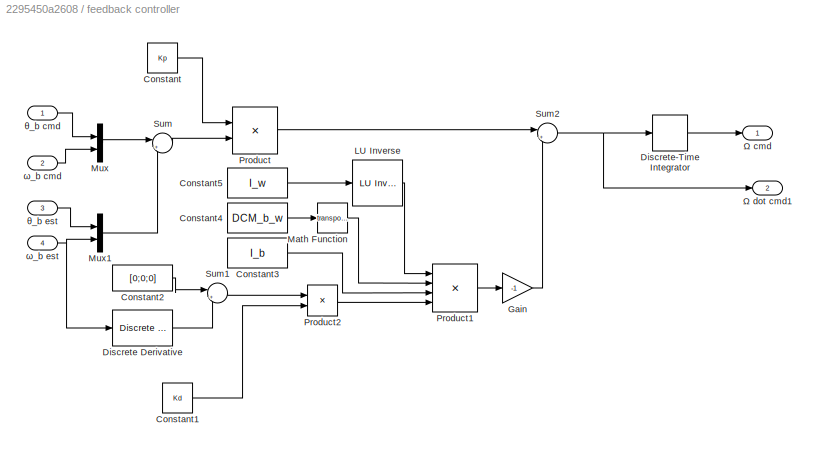
BLOCK [SubSystem] feedback controller
  Ports = [4, 2]
  RequestExecContextInheritance = off
  Variant = off
BLOCK [Reference] feedback controller/ LU Inverse  REF=dspinverses/ LU Inverse
  Ports = [1, 1]
  SourceBlock = dspinverses/ LU Inverse
  SourceProductBaseCode = DS
  SourceProductName = DSP System Toolbox
  SourceType = LU Inverse
BLOCK [Constant] feedback controller/Constant
  Value = Kp
  VectorParams1D = off
BLOCK [Constant] feedback controller/Constant1
  Value = Kd
BLOCK [Constant] feedback controller/Constant2
  Value = [0;0;0]
  VectorParams1D = off
BLOCK [Constant] feedback controller/Constant3
  Value = I_b
BLOCK [Constant] feedback controller/Constant4
  Value = DCM_b_w
  VectorParams1D = off
BLOCK [Constant] feedback controller/Constant5
  Value = I_w
  VectorParams1D = off
BLOCK [Reference] feedback controller/Discrete Derivative  REF=simulink/Discrete/Discrete Derivative
  Ports = [1, 1]
  SourceBlock = simulink/Discrete/Discrete Derivative
  SourceProductBaseCode = SL
  SourceProductName = Simulink
  SourceType = Discrete Derivative
BLOCK [DiscreteIntegrator] feedback controller/Discrete-Time Integrator
  ICPrevOutput = DiscIntNeverNeededParam
  ICPrevScaledInput = DiscIntNeverNeededParam
  InitialConditionSetting = State (most efficient)
  Ports = [1, 1]
  SampleTime = dt_c
BLOCK [Gain] feedback controller/Gain
  Gain = -1
  OutDataTypeStr = Inherit: Inherit via internal rule
  ParamDataTypeStr = Inherit: Inherit via internal rule
  SaturateOnIntegerOverflow = off
BLOCK [Math] feedback controller/Math Function
  Operator = transpose
  Ports = [1, 1]
BLOCK [Mux] feedback controller/Mux
  DisplayOption = bar
  Inputs = 2
  Ports = [2, 1]
BLOCK [Mux] feedback controller/Mux1
  DisplayOption = bar
  Inputs = 2
  Ports = [2, 1]
BLOCK [Product] feedback controller/Product
  InputSameDT = off
  Multiplication = Matrix(*)
  OutDataTypeStr = Inherit: Inherit via internal rule
  Ports = [2, 1]
  RndMeth = Floor
  SaturateOnIntegerOverflow = off
BLOCK [Product] feedback controller/Product1
  InputSameDT = off
  Inputs = 4
  Multiplication = Matrix(*)
  OutDataTypeStr = Inherit: Inherit via internal rule
  Ports = [4, 1]
  RndMeth = Floor
  SaturateOnIntegerOverflow = off
BLOCK [Product] feedback controller/Product2
  InputSameDT = off
  OutDataTypeStr = Inherit: Inherit via internal rule
  Ports = [2, 1]
  RndMeth = Floor
  SaturateOnIntegerOverflow = off
BLOCK [Sum] feedback controller/Sum
  IconShape = round
  InputSameDT = off
  Inputs = |+-
  OutDataTypeStr = Inherit: Inherit via internal rule
  Ports = [2, 1]
  SaturateOnIntegerOverflow = off
BLOCK [Sum] feedback controller/Sum1
  IconShape = round
  InputSameDT = off
  Inputs = |+-
  OutDataTypeStr = Inherit: Inherit via internal rule
  Ports = [2, 1]
  SaturateOnIntegerOverflow = off
BLOCK [Sum] feedback controller/Sum2
  IconShape = round
  InputSameDT = off
  Inputs = |++
  OutDataTypeStr = Inherit: Inherit via internal rule
  Ports = [2, 1]
  SaturateOnIntegerOverflow = off
BLOCK [Outport] feedback controller/Ω cmd
  IconDisplay = Port number
BLOCK [Outport] feedback controller/Ω dot cmd1
  IconDisplay = Port number
  Port = 2
BLOCK [Inport] feedback controller/θ_b cmd
  IconDisplay = Port number
BLOCK [Inport] feedback controller/θ_b est
  IconDisplay = Port number
  Port = 3
BLOCK [Inport] feedback controller/ω_b cmd
  IconDisplay = Port number
  Port = 2
BLOCK [Inport] feedback controller/ω_b est
  IconDisplay = Port number
  Port = 4
BLOCK [SubSystem] feedforward controller
  Ports = [1, 2]
  RequestExecContextInheritance = off
  Variant = off
BLOCK [Reference] feedforward controller/ LU Inverse  REF=dspinverses/ LU Inverse
  Ports = [1, 1]
  SourceBlock = dspinverses/ LU Inverse
  SourceProductBaseCode = DS
  SourceProductName = DSP System Toolbox
  SourceType = LU Inverse
BLOCK [Sum] feedforward controller/Add
  InputSameDT = off
  Inputs = ---
  OutDataTypeStr = Inherit: Inherit via internal rule
  Ports = [3, 1]
  SaturateOnIntegerOverflow = off
BLOCK [Constant] feedforward controller/Constant
  SampleTime = -1
  Value = I_b
  VectorParams1D = off
BLOCK [Constant] feedforward controller/Constant1
  SampleTime = -1
  Value = I_w
  VectorParams1D = off
BLOCK [Constant] feedforward controller/Constant2
  SampleTime = -1
  Value = DCM_b_w
  VectorParams1D = off
BLOCK [Product] feedforward controller/DCM*I_w*Ω
  InputSameDT = off
  Inputs = 3
  Multiplication = Matrix(*)
  OutDataTypeStr = Inherit: Inherit via internal rule
  Ports = [3, 1]
  RndMeth = Floor
  SaturateOnIntegerOverflow = off
BLOCK [Reference] feedforward controller/Discrete Derivative  REF=simulink/Discrete/Discrete Derivative
  Ports = [1, 1]
  SourceBlock = simulink/Discrete/Discrete Derivative
  SourceProductBaseCode = SL
  SourceProductName = Simulink
  SourceType = Discrete Derivative
BLOCK [DiscreteIntegrator] feedforward controller/Discrete-Time Integrator
  ICPrevOutput = DiscIntNeverNeededParam
  ICPrevScaledInput = DiscIntNeverNeededParam
  Ports = [1, 1]
  SampleTime = dt_c
  gainval = 1
BLOCK [Product] feedforward controller/I_b*ω
  InputSameDT = off
  Multiplication = Matrix(*)
  OutDataTypeStr = Inherit: Inherit via internal rule
  Ports = [2, 1]
  RndMeth = Floor
  SaturateOnIntegerOverflow = off
BLOCK [Product] feedforward controller/I_b*ωdot
  InputSameDT = off
  Multiplication = Matrix(*)
  OutDataTypeStr = Inherit: Inherit via internal rule
  Ports = [2, 1]
  RndMeth = Floor
  SaturateOnIntegerOverflow = off
BLOCK [Math] feedforward controller/Math Function
  Operator = transpose
  Ports = [1, 1]
BLOCK [ZeroOrderHold] feedforward controller/Zero-Order Hold
  SampleTime = dt_c
BLOCK [ZeroOrderHold] feedforward controller/Zero-Order Hold1
  SampleTime = dt_c
BLOCK [ZeroOrderHold] feedforward controller/Zero-Order Hold2
  SampleTime = dt_c
BLOCK [Reference] feedforward controller/cross(ω,DCM*I_w*Ω)  REF=vrlib/Utilities/Cross Product
  Ports = [2, 1]
  SourceBlock = vrlib/Utilities/Cross Product
  SourceProductBaseCode = VR
  SourceProductName = Simulink 3D Animation
  SourceType = Cross Product
BLOCK [Reference] feedforward controller/cross(ω,I_b*ω)  REF=vrlib/Utilities/Cross Product
  Ports = [2, 1]
  SourceBlock = vrlib/Utilities/Cross Product
  SourceProductBaseCode = VR
  SourceProductName = Simulink 3D Animation
  SourceType = Cross Product
BLOCK [Product] feedforward controller/inv(I_w)*DCM'*[-cross(ω,DCM*I_w*Ω)-I_b*ωdot-cross(ω,I_b*ω)]
  InputSameDT = off
  Inputs = 3
  Multiplication = Matrix(*)
  OutDataTypeStr = Inherit: Inherit via internal rule
  Ports = [3, 1]
  RndMeth = Floor
  SaturateOnIntegerOverflow = off
BLOCK [Outport] feedforward controller/Ω cmd
  IconDisplay = Port number
BLOCK [Outport] feedforward controller/Ω dot cmd
  IconDisplay = Port number
  Port = 2
BLOCK [Inport] feedforward controller/ω cmd
  IconDisplay = Port number
BLOCK [SubSystem] motor controller
  Ports = [2, 1]
  RequestExecContextInheritance = off
  Variant = off
BLOCK [Constant] motor controller/Constant1
  Value = -v_max
BLOCK [Constant] motor controller/Constant2
  Value = v_max
BLOCK [RelationalOperator] motor controller/Relational Operator
  InputSameDT = off
  Operator = >
  OutDataTypeStr = boolean
  Ports = [2, 1]
  RndMeth = Simplest
BLOCK [Switch] motor controller/Switch
  Criteria = u2 > Threshold
  InputSameDT = off
  SaturateOnIntegerOverflow = off
BLOCK [Outport] motor controller/V
  IconDisplay = Port number
BLOCK [ZeroOrderHold] motor controller/Zero-Order Hold
  SampleTime = dt_c
BLOCK [Inport] motor controller/Ω
  IconDisplay = Port number
  Port = 2
BLOCK [Inport] motor controller/Ω cmd
  IconDisplay = Port number
BLOCK [SubSystem] reaction wheel
  Ports = [1, 1]
  RequestExecContextInheritance = off
  Variant = off
BLOCK [Constant] reaction wheel/Constant
  Value = b
BLOCK [Constant] reaction wheel/Constant1
  Value = K_t
  VectorParams1D = off
BLOCK [Constant] reaction wheel/Constant2
  Value = J
BLOCK [Constant] reaction wheel/Constant3
  Value = K_e
  VectorParams1D = off
BLOCK [Constant] reaction wheel/Constant4
  Value = R
BLOCK [Constant] reaction wheel/Constant5
  Value = L
BLOCK [Product] reaction wheel/Divide
  InputSameDT = off
  Inputs = */
  OutDataTypeStr = Inherit: Inherit via internal rule
  Ports = [2, 1]
  RndMeth = Floor
  SaturateOnIntegerOverflow = off
BLOCK [Product] reaction wheel/Divide1
  InputSameDT = off
  Inputs = */
  OutDataTypeStr = Inherit: Inherit via internal rule
  Ports = [2, 1]
  RndMeth = Floor
  SaturateOnIntegerOverflow = off
BLOCK [Integrator] reaction wheel/Integrator
  InitialCondition = i_0
  Ports = [1, 1]
BLOCK [Integrator] reaction wheel/Integrator1
  InitialCondition = speed_0
  Ports = [1, 1]
BLOCK [Product] reaction wheel/Product
  InputSameDT = off
  OutDataTypeStr = Inherit: Inherit via internal rule
  Ports = [2, 1]
  RndMeth = Floor
  SaturateOnIntegerOverflow = off
BLOCK [Product] reaction wheel/Product1
  InputSameDT = off
  OutDataTypeStr = Inherit: Inherit via internal rule
  Ports = [2, 1]
  RndMeth = Floor
  SaturateOnIntegerOverflow = off
BLOCK [Product] reaction wheel/Product2
  InputSameDT = off
  OutDataTypeStr = Inherit: Inherit via internal rule
  Ports = [2, 1]
  RndMeth = Floor
  SaturateOnIntegerOverflow = off
BLOCK [Product] reaction wheel/Product3
  InputSameDT = off
  OutDataTypeStr = Inherit: Inherit via internal rule
  Ports = [2, 1]
  RndMeth = Floor
  SaturateOnIntegerOverflow = off
BLOCK [RateTransition] reaction wheel/Rate Transition
BLOCK [Sum] reaction wheel/Sum
  IconShape = round
  InputSameDT = off
  Inputs = |+-
  OutDataTypeStr = Inherit: Inherit via internal rule
  Ports = [2, 1]
  SaturateOnIntegerOverflow = off
BLOCK [Sum] reaction wheel/Sum1
  IconShape = round
  InputSameDT = off
  Inputs = |+-
  OutDataTypeStr = Inherit: Inherit via internal rule
  Ports = [2, 1]
  SaturateOnIntegerOverflow = off
BLOCK [Sum] reaction wheel/Sum2
  IconShape = round
  InputSameDT = off
  Inputs = |+-
  OutDataTypeStr = Inherit: Inherit via internal rule
  Ports = [2, 1]
  SaturateOnIntegerOverflow = off
BLOCK [Inport] reaction wheel/V
  IconDisplay = Port number
BLOCK [Outport] reaction wheel/Ω
  IconDisplay = Port number
ANNOTATION EFK discrete/KF State Update/DCM from ref to true: DCM_k+1 = expm(-skew(omega*dt))*DCM_k
ANNOTATION command: x body
ANNOTATION command: y body
ANNOTATION command: z body
LINE Demux1:1 -> Mux:2
LINE Demux1:2 -> Mux1:2
LINE Demux1:3 -> Mux2:2
LINE Demux:1 -> Mux:1
LINE Demux:2 -> Mux1:1
LINE Demux:3 -> Mux2:1
LINE EFK discrete/Air Bearing Discrete State Space/Constant1:1 -> EFK discrete/Air Bearing Discrete State Space/Matrix Multiply1:1
LINE EFK discrete/Air Bearing Discrete State Space/Constant:1 -> EFK discrete/Air Bearing Discrete State Space/Matrix Multiply:1
LINE EFK discrete/Air Bearing Discrete State Space/Matrix Multiply1:1 -> EFK discrete/Air Bearing Discrete State Space/Sum:2
LINE EFK discrete/Air Bearing Discrete State Space/Matrix Multiply:1 -> EFK discrete/Air Bearing Discrete State Space/Sum:1
LINE EFK discrete/Air Bearing Discrete State Space/Sum:1 -> EFK discrete/Air Bearing Discrete State Space/x -:1
LINE EFK discrete/Air Bearing Discrete State Space/x +:1 -> EFK discrete/Air Bearing Discrete State Space/Matrix Multiply1:2
LINE EFK discrete/Air Bearing Discrete State Space/Ω dot:1 -> EFK discrete/Air Bearing Discrete State Space/Matrix Multiply:2
LINE EFK discrete/Air Bearing Discrete State Space:1 -> EFK discrete/KF State Update:6
LINE EFK discrete/Demux:1 -> EFK discrete/Mux:1
LINE EFK discrete/Demux:2 -> EFK discrete/Mux:2
LINE EFK discrete/Demux:3 -> EFK discrete/Mux:3
LINE EFK discrete/Demux:4 -> EFK discrete/Mux1:1
LINE EFK discrete/Demux:5 -> EFK discrete/Mux1:2
LINE EFK discrete/Demux:6 -> EFK discrete/Mux1:3
LINE EFK discrete/KF State Update/Constant1:1 -> EFK discrete/KF State Update/Matrix Multiply1:1
LINE EFK discrete/KF State Update/Constant:1 -> EFK discrete/KF State Update/Matrix Multiply:1
LINE EFK discrete/KF State Update/DCM from ref to true/Constant:1 -> EFK discrete/KF State Update/DCM from ref to true/Product:1
LINE EFK discrete/KF State Update/DCM from ref to true/Gain:1 -> EFK discrete/KF State Update/DCM from ref to true/Interpreted MATLAB Function1:1
NET EFK discrete/KF State Update/DCM from ref to true/Interpreted MATLAB Function1:1 -> EFK discrete/KF State Update/DCM from ref to true/Display2:1, EFK discrete/KF State Update/DCM from ref to true/Matrix Multiply:1
NET EFK discrete/KF State Update/DCM from ref to true/Interpreted MATLAB Function:1 -> EFK discrete/KF State Update/DCM from ref to true/Display1:1, EFK discrete/KF State Update/DCM from ref to true/Gain:1
NET EFK discrete/KF State Update/DCM from ref to true/Matrix Multiply:1 -> EFK discrete/KF State Update/DCM from ref to true/DCM_b_i cmd:1, EFK discrete/KF State Update/DCM from ref to true/Display3:1, EFK discrete/KF State Update/DCM from ref to true/Unit Delay:1
NET EFK discrete/KF State Update/DCM from ref to true/Product:1 -> EFK discrete/KF State Update/DCM from ref to true/Display:1, EFK discrete/KF State Update/DCM from ref to true/Interpreted MATLAB Function:1
LINE EFK discrete/KF State Update/DCM from ref to true/Unit Delay:1 -> EFK discrete/KF State Update/DCM from ref to true/Matrix Multiply:2
LINE EFK discrete/KF State Update/DCM from ref to true/Zero-Order Hold:1 -> EFK discrete/KF State Update/DCM from ref to true/Product:2
LINE EFK discrete/KF State Update/DCM from ref to true/ω cmd:1 -> EFK discrete/KF State Update/DCM from ref to true/Zero-Order Hold:1
NET EFK discrete/KF State Update/DCM from ref to true:1 -> EFK discrete/KF State Update/Display:1, EFK discrete/KF State Update/IMU pos estimation:1, EFK discrete/KF State Update/MAG pos estimation:1
NET EFK discrete/KF State Update/Discrete-Time Integrator:1 -> EFK discrete/KF State Update/Mux:1, EFK discrete/KF State Update/Scope1:1
LINE EFK discrete/KF State Update/IMU pos estimation/Constant:1 -> EFK discrete/KF State Update/IMU pos estimation/Matrix Multiply:2
LINE EFK discrete/KF State Update/IMU pos estimation/Cross Product:1 -> EFK discrete/KF State Update/IMU pos estimation/Divide:1
LINE EFK discrete/KF State Update/IMU pos estimation/DCM_b_i cmd:1 -> EFK discrete/KF State Update/IMU pos estimation/Matrix Multiply:1
LINE EFK discrete/KF State Update/IMU pos estimation/Divide:1 -> EFK discrete/KF State Update/IMU pos estimation/Sum:2
LINE EFK discrete/KF State Update/IMU pos estimation/Interpreted MATLAB Function1:1 -> EFK discrete/KF State Update/IMU pos estimation/Product:1
LINE EFK discrete/KF State Update/IMU pos estimation/Interpreted MATLAB Function:1 -> EFK discrete/KF State Update/IMU pos estimation/Product:2
NET EFK discrete/KF State Update/IMU pos estimation/Matrix Multiply:1 -> EFK discrete/KF State Update/IMU pos estimation/Cross Product:2, EFK discrete/KF State Update/IMU pos estimation/Interpreted MATLAB Function:1
LINE EFK discrete/KF State Update/IMU pos estimation/Product:1 -> EFK discrete/KF State Update/IMU pos estimation/Divide:2
LINE EFK discrete/KF State Update/IMU pos estimation/Sum:1 -> EFK discrete/KF State Update/IMU pos estimation/θ_b meas:1
NET EFK discrete/KF State Update/IMU pos estimation/g_b meas:1 -> EFK discrete/KF State Update/IMU pos estimation/Cross Product:1, EFK discrete/KF State Update/IMU pos estimation/Interpreted MATLAB Function1:1
LINE EFK discrete/KF State Update/IMU pos estimation/θ_b cmd:1 -> EFK discrete/KF State Update/IMU pos estimation/Sum:1
NET EFK discrete/KF State Update/IMU pos estimation:1 -> EFK discrete/KF State Update/Mux:3, EFK discrete/KF State Update/Scope3:2
LINE EFK discrete/KF State Update/MAG pos estimation/Constant:1 -> EFK discrete/KF State Update/MAG pos estimation/Matrix Multiply:2
LINE EFK discrete/KF State Update/MAG pos estimation/Cross Product:1 -> EFK discrete/KF State Update/MAG pos estimation/Divide:1
LINE EFK discrete/KF State Update/MAG pos estimation/DCM cmd:1 -> EFK discrete/KF State Update/MAG pos estimation/Matrix Multiply:1
LINE EFK discrete/KF State Update/MAG pos estimation/Divide:1 -> EFK discrete/KF State Update/MAG pos estimation/Sum:2
LINE EFK discrete/KF State Update/MAG pos estimation/Interpreted MATLAB Function1:1 -> EFK discrete/KF State Update/MAG pos estimation/Product:1
LINE EFK discrete/KF State Update/MAG pos estimation/Interpreted MATLAB Function:1 -> EFK discrete/KF State Update/MAG pos estimation/Product:2
NET EFK discrete/KF State Update/MAG pos estimation/Matrix Multiply:1 -> EFK discrete/KF State Update/MAG pos estimation/Cross Product:2, EFK discrete/KF State Update/MAG pos estimation/Interpreted MATLAB Function:1
LINE EFK discrete/KF State Update/MAG pos estimation/Product:1 -> EFK discrete/KF State Update/MAG pos estimation/Divide:2
LINE EFK discrete/KF State Update/MAG pos estimation/Sum:1 -> EFK discrete/KF State Update/MAG pos estimation/θ_b meas:1
NET EFK discrete/KF State Update/MAG pos estimation/m meas:1 -> EFK discrete/KF State Update/MAG pos estimation/Cross Product:1, EFK discrete/KF State Update/MAG pos estimation/Interpreted MATLAB Function1:1
LINE EFK discrete/KF State Update/MAG pos estimation/θ cmd:1 -> EFK discrete/KF State Update/MAG pos estimation/Sum:1
NET EFK discrete/KF State Update/MAG pos estimation:1 -> EFK discrete/KF State Update/Mux:4, EFK discrete/KF State Update/Scope3:3
LINE EFK discrete/KF State Update/Matrix Multiply1:1 -> EFK discrete/KF State Update/Sum:2
LINE EFK discrete/KF State Update/Matrix Multiply:1 -> EFK discrete/KF State Update/Sum1:1
LINE EFK discrete/KF State Update/Mux:1 -> EFK discrete/KF State Update/Sum:1
LINE EFK discrete/KF State Update/Sum1:1 -> EFK discrete/KF State Update/x +:1
LINE EFK discrete/KF State Update/Sum:1 -> EFK discrete/KF State Update/Matrix Multiply:2
LINE EFK discrete/KF State Update/g meas:1 -> EFK discrete/KF State Update/IMU pos estimation:3
LINE EFK discrete/KF State Update/m meas:1 -> EFK discrete/KF State Update/MAG pos estimation:3
LINE EFK discrete/KF State Update/theta_b:1 -> EFK discrete/KF State Update/Scope3:4
NET EFK discrete/KF State Update/x -:1 -> EFK discrete/KF State Update/Matrix Multiply1:2, EFK discrete/KF State Update/Sum1:2
NET EFK discrete/KF State Update/θ cmd:1 -> EFK discrete/KF State Update/IMU pos estimation:2, EFK discrete/KF State Update/MAG pos estimation:2, EFK discrete/KF State Update/Scope3:1
NET EFK discrete/KF State Update/ω cmd:1 -> EFK discrete/KF State Update/DCM from ref to true:1, EFK discrete/KF State Update/Scope2:1
NET EFK discrete/KF State Update/ω meas:1 -> EFK discrete/KF State Update/Discrete-Time Integrator:1, EFK discrete/KF State Update/Mux:2
NET EFK discrete/KF State Update:1 -> EFK discrete/Air Bearing Discrete State Space:2, EFK discrete/Demux:1, EFK discrete/Scope:1
LINE EFK discrete/Manual Switch:1 -> EFK discrete/Air Bearing Discrete State Space:1
LINE EFK discrete/Mux1:1 -> EFK discrete/ω est:1
LINE EFK discrete/Mux:1 -> EFK discrete/θ est:1
LINE EFK discrete/Reaction Wheel Discrete State Space/Constant1:1 -> EFK discrete/Reaction Wheel Discrete State Space/Matrix Multiply2:1
LINE EFK discrete/Reaction Wheel Discrete State Space/Constant2:1 -> EFK discrete/Reaction Wheel Discrete State Space/Matrix Multiply:1
LINE EFK discrete/Reaction Wheel Discrete State Space/Constant:1 -> EFK discrete/Reaction Wheel Discrete State Space/Matrix Multiply1:1
LINE EFK discrete/Reaction Wheel Discrete State Space/Discrete Derivative:1 -> EFK discrete/Reaction Wheel Discrete State Space/Ω dot:1
LINE EFK discrete/Reaction Wheel Discrete State Space/Matrix Multiply1:1 -> EFK discrete/Reaction Wheel Discrete State Space/Discrete Derivative:1
LINE EFK discrete/Reaction Wheel Discrete State Space/Matrix Multiply2:1 -> EFK discrete/Reaction Wheel Discrete State Space/Sum:2
LINE EFK discrete/Reaction Wheel Discrete State Space/Matrix Multiply:1 -> EFK discrete/Reaction Wheel Discrete State Space/Sum:1
NET EFK discrete/Reaction Wheel Discrete State Space/Sum:1 -> EFK discrete/Reaction Wheel Discrete State Space/Matrix Multiply1:2, EFK discrete/Reaction Wheel Discrete State Space/Unit Delay:1
LINE EFK discrete/Reaction Wheel Discrete State Space/Unit Delay:1 -> EFK discrete/Reaction Wheel Discrete State Space/Matrix Multiply2:2
LINE EFK discrete/Reaction Wheel Discrete State Space/V:1 -> EFK discrete/Reaction Wheel Discrete State Space/Matrix Multiply:2
NET EFK discrete/Reaction Wheel Discrete State Space:1 -> EFK discrete/Manual Switch:1, EFK discrete/Scope1:1
NET EFK discrete/V:1 -> EFK discrete/Manual Switch:2, EFK discrete/Reaction Wheel Discrete State Space:1
LINE EFK discrete/g_b meas:1 -> EFK discrete/KF State Update:1
LINE EFK discrete/m_b meas:1 -> EFK discrete/KF State Update:2
LINE EFK discrete/θ_b :1 -> EFK discrete/KF State Update:7
LINE EFK discrete/θ_b cmd:1 -> EFK discrete/KF State Update:4
LINE EFK discrete/ω_b cmd:1 -> EFK discrete/KF State Update:5
LINE EFK discrete/ω_b meas:1 -> EFK discrete/KF State Update:3
LINE EFK discrete:1 -> Manual Switch:2
LINE EFK discrete:2 -> Manual Switch1:2
LINE IMU Gravity Measurement/Constant:1 -> IMU Gravity Measurement/Matrix Multiply:2
LINE IMU Gravity Measurement/DCM_b_i:1 -> IMU Gravity Measurement/Matrix Multiply:1
LINE IMU Gravity Measurement/Demux:1 -> IMU Gravity Measurement/Sum:1
LINE IMU Gravity Measurement/Demux:2 -> IMU Gravity Measurement/Sum1:1
LINE IMU Gravity Measurement/Demux:3 -> IMU Gravity Measurement/Sum2:1
LINE IMU Gravity Measurement/Matrix Multiply:1 -> IMU Gravity Measurement/Demux:1
LINE IMU Gravity Measurement/Mux:1 -> IMU Gravity Measurement/g_b meas:1
LINE IMU Gravity Measurement/Quantizer1:1 -> IMU Gravity Measurement/Mux:2
LINE IMU Gravity Measurement/Quantizer2:1 -> IMU Gravity Measurement/Mux:3
LINE IMU Gravity Measurement/Quantizer:1 -> IMU Gravity Measurement/Mux:1
LINE IMU Gravity Measurement/Random Number1:1 -> IMU Gravity Measurement/Sum1:2
LINE IMU Gravity Measurement/Random Number2:1 -> IMU Gravity Measurement/Sum2:2
LINE IMU Gravity Measurement/Random Number:1 -> IMU Gravity Measurement/Sum:2
LINE IMU Gravity Measurement/Sum1:1 -> IMU Gravity Measurement/Quantizer1:1
LINE IMU Gravity Measurement/Sum2:1 -> IMU Gravity Measurement/Quantizer2:1
LINE IMU Gravity Measurement/Sum:1 -> IMU Gravity Measurement/Quantizer:1
NET IMU Gravity Measurement:1 -> EFK discrete:2, Scope5:1
LINE IMU Rate Measurement/Demux:1 -> IMU Rate Measurement/Sum:1
LINE IMU Rate Measurement/Demux:2 -> IMU Rate Measurement/Sum1:1
LINE IMU Rate Measurement/Demux:3 -> IMU Rate Measurement/Sum2:1
LINE IMU Rate Measurement/Mux:1 -> IMU Rate Measurement/ω_b meas:1
LINE IMU Rate Measurement/Random Number1:1 -> IMU Rate Measurement/Sum1:2
LINE IMU Rate Measurement/Random Number2:1 -> IMU Rate Measurement/Sum2:2
LINE IMU Rate Measurement/Random Number:1 -> IMU Rate Measurement/Sum:2
LINE IMU Rate Measurement/Sum1:1 -> IMU Rate Measurement/Mux:2
LINE IMU Rate Measurement/Sum2:1 -> IMU Rate Measurement/Mux:3
LINE IMU Rate Measurement/Sum:1 -> IMU Rate Measurement/Mux:1
LINE IMU Rate Measurement/Zero-Order Hold:1 -> IMU Rate Measurement/Demux:1
LINE IMU Rate Measurement/ω_b:1 -> IMU Rate Measurement/Zero-Order Hold:1
NET IMU Rate Measurement:1 -> EFK discrete:4, Scope5:3
LINE Magnetometer Field Measurement/Constant:1 -> Magnetometer Field Measurement/Matrix Multiply:2
LINE Magnetometer Field Measurement/DCM_b_i:1 -> Magnetometer Field Measurement/Matrix Multiply:1
LINE Magnetometer Field Measurement/Demux:1 -> Magnetometer Field Measurement/Sum:1
LINE Magnetometer Field Measurement/Demux:2 -> Magnetometer Field Measurement/Sum1:1
LINE Magnetometer Field Measurement/Demux:3 -> Magnetometer Field Measurement/Sum2:1
LINE Magnetometer Field Measurement/Matrix Multiply:1 -> Magnetometer Field Measurement/Demux:1
LINE Magnetometer Field Measurement/Mux:1 -> Magnetometer Field Measurement/m_b meas:1
LINE Magnetometer Field Measurement/Random Number1:1 -> Magnetometer Field Measurement/Sum1:2
LINE Magnetometer Field Measurement/Random Number2:1 -> Magnetometer Field Measurement/Sum2:2
LINE Magnetometer Field Measurement/Random Number:1 -> Magnetometer Field Measurement/Sum:2
LINE Magnetometer Field Measurement/Sum1:1 -> Magnetometer Field Measurement/Mux:2
LINE Magnetometer Field Measurement/Sum2:1 -> Magnetometer Field Measurement/Mux:3
LINE Magnetometer Field Measurement/Sum:1 -> Magnetometer Field Measurement/Mux:1
NET Magnetometer Field Measurement:1 -> EFK discrete:3, Scope5:2
LINE Manual Switch1:1 -> feedback controller:4
NET Manual Switch2:1 -> Scope6:2, air bearing:1
LINE Manual Switch:1 -> feedback controller:3
LINE Mux1:1 -> Scope2:2
LINE Mux2:1 -> Scope2:3
LINE Mux:1 -> Scope2:1
LINE Subsystem/Discrete Derivative:1 -> Subsystem/Sum1:1
LINE Subsystem/Discrete-Time Integrator:1 -> Subsystem/Sum1:3
NET Subsystem/Kc:1 -> Subsystem/Kd:1, Subsystem/Ki:1, Subsystem/Kp:1
LINE Subsystem/Kd:1 -> Subsystem/Discrete Derivative:1
LINE Subsystem/Ki:1 -> Subsystem/Discrete-Time Integrator:1
LINE Subsystem/Kp:1 -> Subsystem/Sum1:2
LINE Subsystem/Sum1:1 -> Subsystem/V:1
LINE Subsystem/Ω:1 -> Subsystem/Kc:1
NET Sum:1 -> Manual Switch2:1, Scope6:1, motor controller:1
LINE air bearing/Integrator1:1 -> air bearing/θ_b:1
NET air bearing/Integrator:1 -> air bearing/Integrator1:1, air bearing/air bearing dyamics:2, air bearing/ω to DCM:1, air bearing/ω_b:1
LINE air bearing/air bearing dyamics/Add:1 -> air bearing/air bearing dyamics/ω_dot = inv(I_b)*[-cross(ω,DCM*I_w*Ω)-DCM*I_w*Ωdot-cross(ω,I_b*ω)]:2
LINE air bearing/air bearing dyamics/DCM*I_w*Ω:1 -> air bearing/air bearing dyamics/cross(ω,DCM*I_w*Ω):2
LINE air bearing/air bearing dyamics/DCM*I_w*Ωdot:1 -> air bearing/air bearing dyamics/Add:2
NET air bearing/air bearing dyamics/DCM_w_b1:1 -> air bearing/air bearing dyamics/DCM*I_w*Ω:2, air bearing/air bearing dyamics/DCM*I_w*Ωdot:2
NET air bearing/air bearing dyamics/DCM_w_b2:1 -> air bearing/air bearing dyamics/I_b*ω:1, air bearing/air bearing dyamics/inv(I_b):1
NET air bearing/air bearing dyamics/DCM_w_b:1 -> air bearing/air bearing dyamics/DCM*I_w*Ω:1, air bearing/air bearing dyamics/DCM*I_w*Ωdot:1
LINE air bearing/air bearing dyamics/Derivative:1 -> air bearing/air bearing dyamics/DCM*I_w*Ωdot:3
LINE air bearing/air bearing dyamics/I_b*ω:1 -> air bearing/air bearing dyamics/cross(ω,I_b*ω):2
LINE air bearing/air bearing dyamics/cross(ω,DCM*I_w*Ω):1 -> air bearing/air bearing dyamics/Add:1
LINE air bearing/air bearing dyamics/cross(ω,I_b*ω):1 -> air bearing/air bearing dyamics/Add:3
LINE air bearing/air bearing dyamics/inv(I_b):1 -> air bearing/air bearing dyamics/ω_dot = inv(I_b)*[-cross(ω,DCM*I_w*Ω)-DCM*I_w*Ωdot-cross(ω,I_b*ω)]:1
NET air bearing/air bearing dyamics/Ω_w:1 -> air bearing/air bearing dyamics/DCM*I_w*Ω:3, air bearing/air bearing dyamics/Derivative:1
NET air bearing/air bearing dyamics/ω_b:1 -> air bearing/air bearing dyamics/I_b*ω:2, air bearing/air bearing dyamics/cross(ω,DCM*I_w*Ω):1, air bearing/air bearing dyamics/cross(ω,I_b*ω):1
LINE air bearing/air bearing dyamics/ω_dot = inv(I_b)*[-cross(ω,DCM*I_w*Ω)-DCM*I_w*Ωdot-cross(ω,I_b*ω)]:1 -> air bearing/air bearing dyamics/ω_dot:1
LINE air bearing/air bearing dyamics:1 -> air bearing/Integrator:1
LINE air bearing/Ω:1 -> air bearing/air bearing dyamics:1
LINE air bearing/ω to DCM/Constant:1 -> air bearing/ω to DCM/Product:1
LINE air bearing/ω to DCM/Gain:1 -> air bearing/ω to DCM/Interpreted MATLAB Function1:1
LINE air bearing/ω to DCM/Interpreted MATLAB Function1:1 -> air bearing/ω to DCM/Matrix Multiply:1
LINE air bearing/ω to DCM/Interpreted MATLAB Function:1 -> air bearing/ω to DCM/Gain:1
NET air bearing/ω to DCM/Matrix Multiply:1 -> air bearing/ω to DCM/DCM_b_i:1, air bearing/ω to DCM/Unit Delay:1
LINE air bearing/ω to DCM/Product:1 -> air bearing/ω to DCM/Interpreted MATLAB Function:1
LINE air bearing/ω to DCM/Unit Delay:1 -> air bearing/ω to DCM/Matrix Multiply:2
LINE air bearing/ω to DCM/Zero-Order Hold:1 -> air bearing/ω to DCM/Product:2
LINE air bearing/ω to DCM/ω:1 -> air bearing/ω to DCM/Zero-Order Hold:1
LINE air bearing/ω to DCM:1 -> air bearing/DCM_b_i:1
NET air bearing:1 -> Demux1:1, IMU Rate Measurement:1, Manual Switch1:1, To Workspace:1
NET air bearing:2 -> EFK discrete:7, Manual Switch:1, To Workspace1:1
NET air bearing:3 -> IMU Gravity Measurement:1, Magnetometer Field Measurement:1
LINE command/Discrete-Time Integrator:1 -> command/θ cmd:1
LINE command/Matrix Concatenate:1 -> command/Zero-Order Hold:1
LINE command/Ramp10:1 -> command/Sum8:2
LINE command/Ramp11:1 -> command/Sum9:2
LINE command/Ramp12:1 -> command/Sum10:1
LINE command/Ramp13:1 -> command/Sum10:2
LINE command/Ramp14:1 -> command/Sum11:2
LINE command/Ramp15:1 -> command/Sum12:2
LINE command/Ramp1:1 -> command/Sum:2
LINE command/Ramp2:1 -> command/Sum1:2
LINE command/Ramp3:1 -> command/Sum2:2
LINE command/Ramp4:1 -> command/Sum4:1
LINE command/Ramp5:1 -> command/Sum4:2
LINE command/Ramp6:1 -> command/Sum5:2
LINE command/Ramp7:1 -> command/Sum6:2
LINE command/Ramp8:1 -> command/Sum7:1
LINE command/Ramp9:1 -> command/Sum7:2
LINE command/Ramp:1 -> command/Sum:1
LINE command/Sum10:1 -> command/Sum11:1
LINE command/Sum11:1 -> command/Sum12:1
LINE command/Sum12:1 -> command/Sum3:2
LINE command/Sum1:1 -> command/Sum2:1
LINE command/Sum2:1 -> command/Sum3:1
LINE command/Sum3:1 -> command/Matrix Concatenate:3
LINE command/Sum4:1 -> command/Sum5:1
LINE command/Sum5:1 -> command/Sum6:1
LINE command/Sum6:1 -> command/Matrix Concatenate:2
LINE command/Sum7:1 -> command/Sum8:1
LINE command/Sum8:1 -> command/Sum9:1
LINE command/Sum9:1 -> command/Matrix Concatenate:1
LINE command/Sum:1 -> command/Sum1:1
NET command/Zero-Order Hold:1 -> command/Discrete-Time Integrator:1, command/ω cmd:1
NET command:1 -> EFK discrete:5, To Workspace3:1, feedback controller:1
NET command:2 -> Demux:1, EFK discrete:6, To Workspace2:1, feedback controller:2, feedforward controller:1
LINE feedback controller/ LU Inverse:1 -> feedback controller/Product1:1
LINE feedback controller/Constant1:1 -> feedback controller/Product2:2
LINE feedback controller/Constant2:1 -> feedback controller/Sum1:1
LINE feedback controller/Constant3:1 -> feedback controller/Product1:3
LINE feedback controller/Constant4:1 -> feedback controller/Math Function:1
LINE feedback controller/Constant5:1 -> feedback controller/ LU Inverse:1
LINE feedback controller/Constant:1 -> feedback controller/Product:1
LINE feedback controller/Discrete Derivative:1 -> feedback controller/Sum1:2
LINE feedback controller/Discrete-Time Integrator:1 -> feedback controller/Ω cmd:1
LINE feedback controller/Gain:1 -> feedback controller/Sum2:2
LINE feedback controller/Math Function:1 -> feedback controller/Product1:2
LINE feedback controller/Mux1:1 -> feedback controller/Sum:2
LINE feedback controller/Mux:1 -> feedback controller/Sum:1
LINE feedback controller/Product1:1 -> feedback controller/Gain:1
LINE feedback controller/Product2:1 -> feedback controller/Product1:4
LINE feedback controller/Product:1 -> feedback controller/Sum2:1
LINE feedback controller/Sum1:1 -> feedback controller/Product2:1
NET feedback controller/Sum2:1 -> feedback controller/Discrete-Time Integrator:1, feedback controller/Ω dot cmd1:1
LINE feedback controller/Sum:1 -> feedback controller/Product:2
LINE feedback controller/θ_b cmd:1 -> feedback controller/Mux:1
LINE feedback controller/θ_b est:1 -> feedback controller/Mux1:1
LINE feedback controller/ω_b cmd:1 -> feedback controller/Mux:2
NET feedback controller/ω_b est:1 -> feedback controller/Discrete Derivative:1, feedback controller/Mux1:2
LINE feedback controller:1 -> Sum:2
LINE feedforward controller/ LU Inverse:1 -> feedforward controller/inv(I_w)*DCM'*[-cross(ω,DCM*I_w*Ω)-I_b*ωdot-cross(ω,I_b*ω)]:1
LINE feedforward controller/Add:1 -> feedforward controller/inv(I_w)*DCM'*[-cross(ω,DCM*I_w*Ω)-I_b*ωdot-cross(ω,I_b*ω)]:3
LINE feedforward controller/Constant1:1 -> feedforward controller/Zero-Order Hold:1
LINE feedforward controller/Constant2:1 -> feedforward controller/Zero-Order Hold2:1
LINE feedforward controller/Constant:1 -> feedforward controller/Zero-Order Hold1:1
LINE feedforward controller/DCM*I_w*Ω:1 -> feedforward controller/cross(ω,DCM*I_w*Ω):2
LINE feedforward controller/Discrete Derivative:1 -> feedforward controller/I_b*ωdot:2
NET feedforward controller/Discrete-Time Integrator:1 -> feedforward controller/DCM*I_w*Ω:3, feedforward controller/Ω cmd:1
LINE feedforward controller/I_b*ω:1 -> feedforward controller/cross(ω,I_b*ω):2
LINE feedforward controller/I_b*ωdot:1 -> feedforward controller/Add:2
LINE feedforward controller/Math Function:1 -> feedforward controller/inv(I_w)*DCM'*[-cross(ω,DCM*I_w*Ω)-I_b*ωdot-cross(ω,I_b*ω)]:2
NET feedforward controller/Zero-Order Hold1:1 -> feedforward controller/I_b*ω:1, feedforward controller/I_b*ωdot:1
NET feedforward controller/Zero-Order Hold2:1 -> feedforward controller/DCM*I_w*Ω:1, feedforward controller/Math Function:1
NET feedforward controller/Zero-Order Hold:1 -> feedforward controller/ LU Inverse:1, feedforward controller/DCM*I_w*Ω:2
LINE feedforward controller/cross(ω,DCM*I_w*Ω):1 -> feedforward controller/Add:1
LINE feedforward controller/cross(ω,I_b*ω):1 -> feedforward controller/Add:3
NET feedforward controller/inv(I_w)*DCM'*[-cross(ω,DCM*I_w*Ω)-I_b*ωdot-cross(ω,I_b*ω)]:1 -> feedforward controller/Discrete-Time Integrator:1, feedforward controller/Ω dot cmd:1
NET feedforward controller/ω cmd:1 -> feedforward controller/Discrete Derivative:1, feedforward controller/I_b*ω:2, feedforward controller/cross(ω,DCM*I_w*Ω):1, feedforward controller/cross(ω,I_b*ω):1
LINE feedforward controller:1 -> Sum:1
LINE motor controller/Constant1:1 -> motor controller/Switch:3
LINE motor controller/Constant2:1 -> motor controller/Switch:1
LINE motor controller/Relational Operator:1 -> motor controller/Switch:2
LINE motor controller/Switch:1 -> motor controller/Zero-Order Hold:1
LINE motor controller/Zero-Order Hold:1 -> motor controller/V:1
LINE motor controller/Ω cmd:1 -> motor controller/Relational Operator:1
LINE motor controller/Ω:1 -> motor controller/Relational Operator:2
NET motor controller:1 -> EFK discrete:1, reaction wheel:1
LINE reaction wheel/Constant1:1 -> reaction wheel/Product2:1
LINE reaction wheel/Constant2:1 -> reaction wheel/Divide1:2
LINE reaction wheel/Constant3:1 -> reaction wheel/Product1:1
LINE reaction wheel/Constant4:1 -> reaction wheel/Product:1
LINE reaction wheel/Constant5:1 -> reaction wheel/Divide:2
LINE reaction wheel/Constant:1 -> reaction wheel/Product3:1
LINE reaction wheel/Divide1:1 -> reaction wheel/Integrator1:1
LINE reaction wheel/Divide:1 -> reaction wheel/Integrator:1
NET reaction wheel/Integrator1:1 -> reaction wheel/Product1:2, reaction wheel/Product3:2, reaction wheel/Ω:1
NET reaction wheel/Integrator:1 -> reaction wheel/Product2:2, reaction wheel/Product:2
LINE reaction wheel/Product1:1 -> reaction wheel/Sum2:2
LINE reaction wheel/Product2:1 -> reaction wheel/Sum:1
LINE reaction wheel/Product3:1 -> reaction wheel/Sum:2
LINE reaction wheel/Product:1 -> reaction wheel/Sum1:2
LINE reaction wheel/Rate Transition:1 -> reaction wheel/Sum1:1
LINE reaction wheel/Sum1:1 -> reaction wheel/Sum2:1
LINE reaction wheel/Sum2:1 -> reaction wheel/Divide:1
LINE reaction wheel/Sum:1 -> reaction wheel/Divide1:1
LINE reaction wheel/V:1 -> reaction wheel/Rate Transition:1
NET reaction wheel:1 -> Manual Switch2:2, motor controller:2
note: NET lines group one-source signal fan-out (src -> all destinations, sorted); 1:1 wires keep LINE
